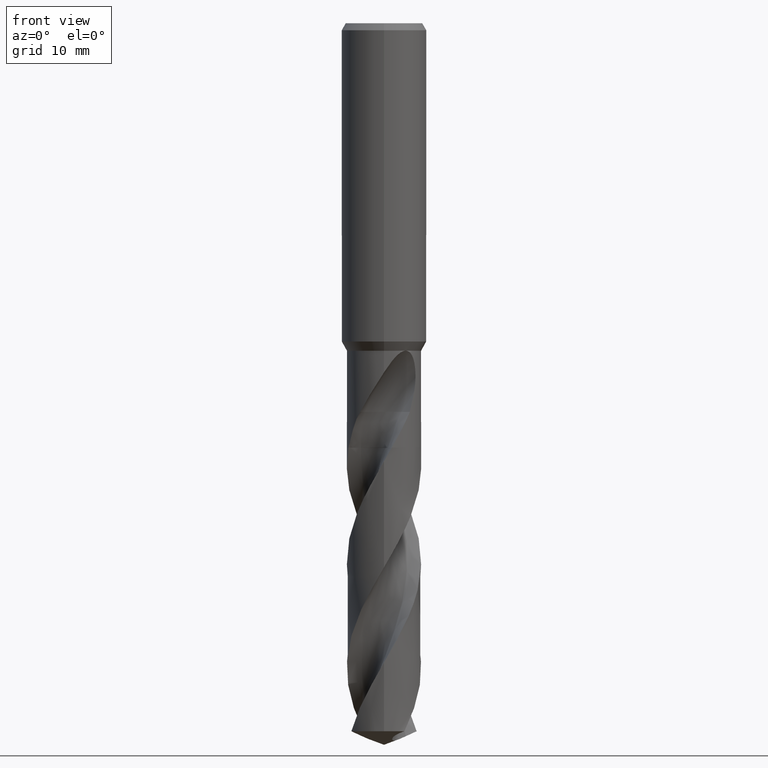
[diagram: clean part render]
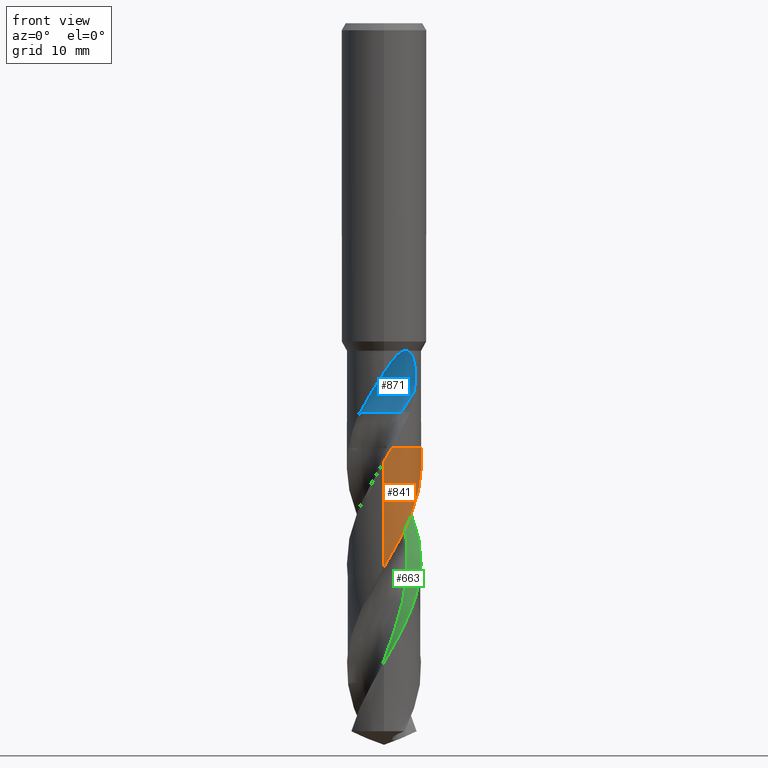
[diagram: same view with three faces highlighted in distinct colors, each labeled with its STEP entity id]
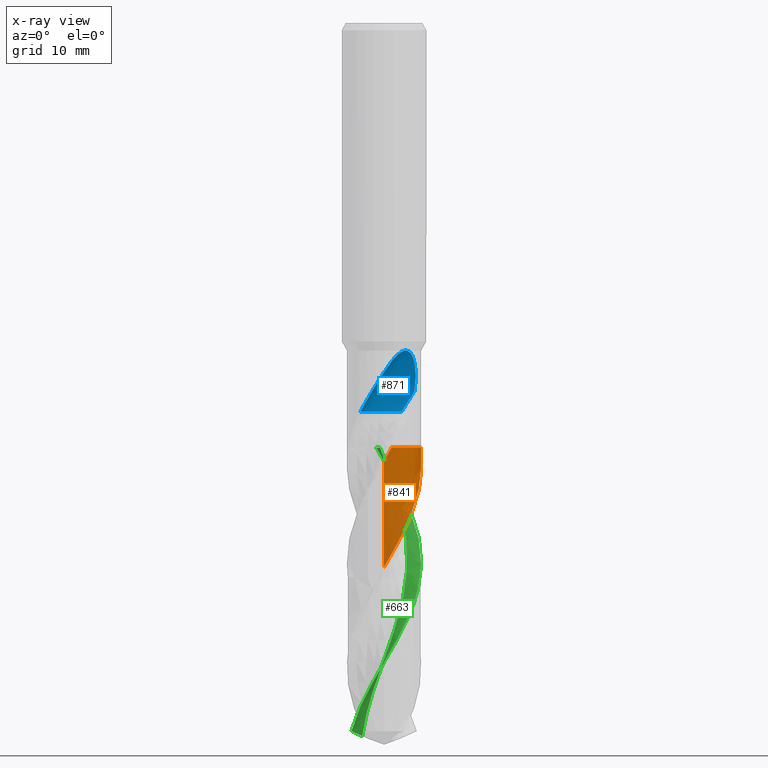
[diagram: x-ray of the same camera — body ghosted, the three highlighted faces saturated]
A machine part, front view with three faces highlighted in distinct colors.
The next image is the same camera in x-ray (body ghosted, the three faces saturated) — at least one of them is partly hidden behind the body in this view.
Their STEP definitions:

[orange] entity #841 — the highlighted conical surface has half-angle 0 deg.
#409=VERTEX_POINT('',#1004);
#425=EDGE_CURVE('',#707,#615,#1021,.T.);
#445=EDGE_CURVE('',#693,#489,#1042,.T.);
#455=EDGE_CURVE('',#639,#409,#1053,.T.);
#489=VERTEX_POINT('',#1093);
#563=EDGE_CURVE('',#489,#707,#1172,.T.);
#567=EDGE_CURVE('',#615,#639,#1176,.T.);
#615=VERTEX_POINT('',#1228);
#639=VERTEX_POINT('',#1253);
#693=VERTEX_POINT('',#1312);
#707=VERTEX_POINT('',#1327);
#815=EDGE_CURVE('',#693,#409,#1446,.T.);
#841=ADVANCED_FACE('',(#1472),#1473,.T.);
#1004=CARTESIAN_POINT('',(-1.29242222200882E-012,-5.24990479078904,-61.9205869078803));
#1021=CIRCLE('',#2390,5.2499);
#1042=B_SPLINE_CURVE_WITH_KNOTS('',3,(#3077,#3078,#3079,#3080,#3081,#3082,#3083,#3084,#3085,#3086,#3087,#3088,#3089,#3090,#3091,#3092,#3093,#3094,#3095,#3096,#3097,#3098,#3099,#3100,#3101,#3102,#3103,#3104,#3105,#3106,#3107,#3108,#3109,#3110,#3111,#3112,#3113,#3114,#3115,#3116,#3117,#3118,#3119,#3120,#3121,#3122,#3123,#3124,#3125,#3126,#3127,#3128,#3129,#3130,#3131,#3132,#3133,#3134,#3135,#3136),.UNSPECIFIED.,.F.,.F.,(4,2,2,2,2,2,2,2,2,2,2,2,2,2,2,2,2,2,2,2,2,2,2,2,2,2,2,2,2,4),(0.0,1.69604232633768,3.95654357850211,5.19424049121899,7.9902199599627,8.06944459956528,10.6110201519859,12.7712613762915,14.6149137898726,14.9937175403709,17.5299463312583,18.9288472685319,20.35117627029,22.6441457482709,23.8341706022322,26.4052815924515,28.1162914181753,28.5780080398245,31.2146760874843,32.3337493303732,33.843140532863,36.6628807183644,38.2955388338668,38.7920476707143,40.5134691139163,41.2327314637739,42.4894622868259,44.3822345116445,44.8542706479082,46.2662731762739),.UNSPECIFIED.);
#1053=B_SPLINE_CURVE_WITH_KNOTS('',3,(#3149,#3150,#3151,#3152,#3153,#3154,#3155,#3156,#3157,#3158,#3159,#3160,#3161,#3162,#3163,#3164,#3165,#3166,#3167,#3168,#3169,#3170,#3171,#3172,#3173,#3174,#3175,#3176,#3177,#3178,#3179,#3180,#3181,#3182,#3183,#3184,#3185,#3186,#3187,#3188,#3189,#3190,#3191,#3192,#3193,#3194,#3195,#3196,#3197,#3198,#3199,#3200,#3201,#3202,#3203,#3204,#3205,#3206,#3207,#3208,#3209,#3210),.UNSPECIFIED.,.F.,.F.,(4,2,2,2,2,2,2,2,2,2,2,2,2,2,2,2,2,2,2,2,2,2,2,2,2,2,2,2,2,2,4),(0.0,1.43060314433986,2.92107776645417,3.93674837129216,4.94065953597037,6.9567805345799,8.97144594495465,10.9987850327712,11.4971904510435,13.5058843635595,15.5315992743186,17.5543433164602,18.5555934004618,20.5702694343211,22.5859867195525,24.6132271536856,25.1111540989228,27.11923642168,28.1339156963816,28.1998878179063,29.9749144308263,30.9912413764675,31.9428990632485,33.7281284630789,34.5162879273958,35.2510175751263,38.0053057504806,39.0431652988399,40.8664623185967,42.2362277973614,46.3577027500781),.UNSPECIFIED.);
#1093=CARTESIAN_POINT('',(5.02190616105026,1.53032960307543,-60.005));
#1172=B_SPLINE_CURVE_WITH_KNOTS('',3,(#6018,#6019,#6020,#6021),.UNSPECIFIED.,.F.,.F.,(4,4),(0.0,0.0130570896058492),.UNSPECIFIED.);
#1176=B_SPLINE_CURVE_WITH_KNOTS('',3,(#6026,#6027,#6028,#6029),.UNSPECIFIED.,.F.,.F.,(4,4),(0.0,0.0106247722658359),.UNSPECIFIED.);
#1228=CARTESIAN_POINT('',(1.10449296799479,-5.13240151329278,-60.0));
#1253=CARTESIAN_POINT('',(1.10165699910935,-5.13301100693042,-60.005));
#1312=CARTESIAN_POINT('',(3.21470154828919E-016,-5.24994219249676,-76.9146159629963));
#1327=CARTESIAN_POINT('',(5.02106099968186,1.53310027313083,-60.0));
#1446=LINE('',#8343,#8344);
#1472=FACE_OUTER_BOUND('',#8415,.T.);
#1473=CONICAL_SURFACE('',#8416,5.24995,2.49444012554929E-006);
#2390=AXIS2_PLACEMENT_3D('',#9245,#9246,#9247);
#3077=CARTESIAN_POINT('',(-2.8901051615319,4.38289768934741,-100.089156270102));
#3078=CARTESIAN_POINT('',(-3.12603112507274,4.2273254388367,-99.5995095148783));
#3079=CARTESIAN_POINT('',(-3.34960088165933,4.05255108882982,-99.1103201914125));
#3080=CARTESIAN_POINT('',(-3.83633144067698,3.60389280659804,-97.969155824684));
#3081=CARTESIAN_POINT('',(-4.08576132906963,3.31839936753522,-97.3228987500801));
#3082=CARTESIAN_POINT('',(-4.4208920606572,2.83917636866332,-96.3139254670834));
#3083=CARTESIAN_POINT('',(-4.52914028809523,2.66307102619708,-95.9556324763328));
#3084=CARTESIAN_POINT('',(-4.84727031929991,2.06979947668451,-94.7925276905195));
#3085=CARTESIAN_POINT('',(-5.01179413960501,1.63131405211992,-93.9964226305323));
#3086=CARTESIAN_POINT('',(-5.11920728001843,1.16456416443467,-93.1671939099345));
#3087=CARTESIAN_POINT('',(-5.1221242441394,1.15166716512589,-93.1443028472052));
#3088=CARTESIAN_POINT('',(-5.21729247490321,0.723337449507694,-92.3849184862638));
#3089=CARTESIAN_POINT('',(-5.25884605395999,0.297880134397622,-91.6564488479887));
#3090=CARTESIAN_POINT('',(-5.23952886899669,-0.490920138394774,-90.2959245085539));
#3091=CARTESIAN_POINT('',(-5.19315433300631,-0.851502767995357,-89.6688131036474));
#3092=CARTESIAN_POINT('',(-5.03881637957859,-1.50613400847199,-88.5103767454134));
#3093=CARTESIAN_POINT('',(-4.9413306963596,-1.80019844387579,-87.9798294172521));
#3094=CARTESIAN_POINT('',(-4.79365714395525,-2.14173748886121,-87.33613067871));
#3095=CARTESIAN_POINT('',(-4.76746627325916,-2.19942106530551,-87.2263614767854));
#3096=CARTESIAN_POINT('',(-4.55761531090769,-2.64020782203027,-86.3818418200341));
#3097=CARTESIAN_POINT('',(-4.32906504632685,-3.00038810224256,-85.655002832788));
#3098=CARTESIAN_POINT('',(-3.91043709931445,-3.51078939209973,-84.5161751324585));
#3099=CARTESIAN_POINT('',(-3.74977275993258,-3.68189380659992,-84.1099709981162));
#3100=CARTESIAN_POINT('',(-3.40348536111457,-4.00440548845531,-83.2934987357573));
#3101=CARTESIAN_POINT('',(-3.21791877679513,-4.15501050287858,-82.8833259914254));
#3102=CARTESIAN_POINT('',(-2.70772435735555,-4.51426145102256,-81.8086845148264));
#3103=CARTESIAN_POINT('',(-2.36965612240539,-4.70051773765695,-81.1432901826052));
#3104=CARTESIAN_POINT('',(-1.8297660175696,-4.92481809771572,-80.1356583558018));
#3105=CARTESIAN_POINT('',(-1.64104749051285,-4.99087792674438,-79.7922242084909));
#3106=CARTESIAN_POINT('',(-1.03401339341714,-5.16518667139937,-78.7043237311908));
#3107=CARTESIAN_POINT('',(-0.606067867706179,-5.23269115610077,-77.9587252011979));
#3108=CARTESIAN_POINT('',(0.112693439674698,-5.25659213077119,-76.7202797923568));
#3109=CARTESIAN_POINT('',(0.399749176052545,-5.24253153279672,-76.2277028717759));
#3110=CARTESIAN_POINT('',(0.760415984674996,-5.19515175182692,-75.5986910976799));
#3111=CARTESIAN_POINT('',(0.836725040831433,-5.18340781157335,-75.4649118378971));
#3112=CARTESIAN_POINT('',(1.34733691629393,-5.09325138861594,-74.568079655969));
#3113=CARTESIAN_POINT('',(1.77059354238548,-4.96204671316346,-73.8137792183439));
#3114=CARTESIAN_POINT('',(2.34335102548353,-4.70166287897628,-72.7276439004102));
#3115=CARTESIAN_POINT('',(2.5095500928279,-4.61509042125619,-72.4030688698153));
#3116=CARTESIAN_POINT('',(2.88853264548823,-4.39113162720045,-71.6429474581602));
#3117=CARTESIAN_POINT('',(3.09679008853746,-4.24685630534213,-71.208190048897));
#3118=CARTESIAN_POINT('',(3.66245483897656,-3.79104555386309,-69.957240341705));
#3119=CARTESIAN_POINT('',(3.98897708809037,-3.44581210802026,-69.1409468496764));
#3120=CARTESIAN_POINT('',(4.42464229444953,-2.83888169474369,-67.8544219256852));
#3121=CARTESIAN_POINT('',(4.56647417942168,-2.60451979017197,-67.3846009404032));
#3122=CARTESIAN_POINT('',(4.72659746844339,-2.28643823579801,-66.7687196411048));
#3123=CARTESIAN_POINT('',(4.76212581058806,-2.21148750531356,-66.624962681427));
#3124=CARTESIAN_POINT('',(4.91302227827379,-1.87262066043252,-65.9833731322141));
#3125=CARTESIAN_POINT('',(5.00850011757267,-1.59999713946767,-65.4880124172875));
#3126=CARTESIAN_POINT('',(5.11152154876554,-1.20353446778928,-64.7829690787855));
#3127=CARTESIAN_POINT('',(5.13782386028333,-1.08575859606639,-64.5753424893121));
#3128=CARTESIAN_POINT('',(5.19884767790033,-0.760206614566056,-64.0042952064219));
#3129=CARTESIAN_POINT('',(5.22511627940783,-0.551286305545956,-63.6400676220906));
#3130=CARTESIAN_POINT('',(5.25938788370471,-0.0254551505790213,-62.7300485734613));
#3131=CARTESIAN_POINT('',(5.25135904879003,0.291849449268539,-62.1863370497658));
#3132=CARTESIAN_POINT('',(5.20560227868835,0.685157787644466,-61.503697917373));
#3133=CARTESIAN_POINT('',(5.19470646769679,0.763368699510361,-61.3674674420904));
#3134=CARTESIAN_POINT('',(5.1442606942825,1.07411375179131,-60.8232343161817));
#3135=CARTESIAN_POINT('',(5.09080591005779,1.30425388010108,-60.4129558671829));
#3136=CARTESIAN_POINT('',(5.02186622742537,1.53046062628461,-60.0047635599666));
#3149=CARTESIAN_POINT('',(1.10257892316848,-5.13281305100531,-60.0033746492053));
#3150=CARTESIAN_POINT('',(0.868618422295841,-5.18307112902309,-60.4158542572162));
#3151=CARTESIAN_POINT('',(0.631669564091157,-5.21723630956715,-60.8281292312265));
#3152=CARTESIAN_POINT('',(0.145173964562918,-5.25379730972545,-61.6706969554782));
#3153=CARTESIAN_POINT('',(-0.104223573404801,-5.25478514275898,-62.0998785881285));
#3154=CARTESIAN_POINT('',(-0.522371130533462,-5.2266146365263,-62.8224039984766));
#3155=CARTESIAN_POINT('',(-0.69115950581733,-5.2069821944883,-63.1150450037658));
#3156=CARTESIAN_POINT('',(-1.02425507523216,-5.15175873132556,-63.6973430929842));
#3157=CARTESIAN_POINT('',(-1.18835466098438,-5.11639464900745,-63.986647587419));
#3158=CARTESIAN_POINT('',(-1.67589447716427,-4.98662142085647,-64.8576359479775));
#3159=CARTESIAN_POINT('',(-1.99242859625746,-4.86882570970779,-65.437997611086));
#3160=CARTESIAN_POINT('',(-2.59855890272966,-4.57412216005371,-66.6001796969169));
#3161=CARTESIAN_POINT('',(-2.88653336182741,-4.39805474892258,-67.179596208651));
#3162=CARTESIAN_POINT('',(-3.42630053870544,-3.99210293136061,-68.3453153967418));
#3163=CARTESIAN_POINT('',(-3.67678724836819,-3.7626907680384,-68.9284167955091));
#3164=CARTESIAN_POINT('',(-3.9592101877276,-3.44866689350374,-69.6566448199159));
#3165=CARTESIAN_POINT('',(-4.01344143032233,-3.38540014665178,-69.8003049564697));
#3166=CARTESIAN_POINT('',(-4.27850965680347,-3.0608494214261,-70.5233243422417));
#3167=CARTESIAN_POINT('',(-4.46549720879389,-2.78098476686657,-71.1018798949298));
#3168=CARTESIAN_POINT('',(-4.78481494655265,-2.18678708755288,-72.2653141725307));
#3169=CARTESIAN_POINT('',(-4.9158509361986,-1.87370818283243,-72.8476613055794));
#3170=CARTESIAN_POINT('',(-5.11562782586054,-1.22736280719264,-74.0154079339251));
#3171=CARTESIAN_POINT('',(-5.18406332544019,-0.895408662258623,-74.5974694829541));
#3172=CARTESIAN_POINT('',(-5.23791939655127,-0.392549373537024,-75.4694759726506));
#3173=CARTESIAN_POINT('',(-5.24776907098667,-0.225356049932076,-75.7579483970451));
#3174=CARTESIAN_POINT('',(-5.25334240368956,0.278669597902259,-76.6278781219883));
#3175=CARTESIAN_POINT('',(-5.2246650969247,0.615059675940542,-77.2079905187987));
#3176=CARTESIAN_POINT('',(-5.10315097364544,1.27805388735894,-78.3703410308356));
#3177=CARTESIAN_POINT('',(-5.01060100149166,1.60290789464235,-78.9502549535432));
#3178=CARTESIAN_POINT('',(-4.76393677653243,2.23196646954475,-80.1165084895025));
#3179=CARTESIAN_POINT('',(-4.60996273635702,2.53479845295803,-80.6996819318756));
#3180=CARTESIAN_POINT('',(-4.38303823017189,2.89100724534232,-81.4278960626842));
#3181=CARTESIAN_POINT('',(-4.33664045538966,2.96015099756517,-81.571449493401));
#3182=CARTESIAN_POINT('',(-4.09499230681046,3.30238889595641,-82.2943112101351));
#3183=CARTESIAN_POINT('',(-3.87545558859398,3.55748103045284,-82.8728289467225));
#3184=CARTESIAN_POINT('',(-3.5105316123901,3.90730532375505,-83.7447231027236));
#3185=CARTESIAN_POINT('',(-3.38240059485701,4.01873772271445,-84.0371375544665));
#3186=CARTESIAN_POINT('',(-3.24041497935274,4.13060773656662,-84.3488192512323));
#3187=CARTESIAN_POINT('',(-3.23172526474826,4.13741003905927,-84.3678473457493));
#3188=CARTESIAN_POINT('',(-2.98863461364664,4.32646809731323,-84.8988951581913));
#3189=CARTESIAN_POINT('',(-2.73926008445949,4.48850404591266,-85.4107244307974));
#3190=CARTESIAN_POINT('',(-2.32774541713381,4.70878114992716,-86.2160951874656));
#3191=CARTESIAN_POINT('',(-2.17407102882042,4.78168069868387,-86.509100068545));
#3192=CARTESIAN_POINT('',(-1.87009802072658,4.9081810527394,-87.0768113498752));
#3193=CARTESIAN_POINT('',(-1.72044192553573,4.96261742885777,-87.3510358849452));
#3194=CARTESIAN_POINT('',(-1.2836722877532,5.09936226175732,-88.1407352322101));
#3195=CARTESIAN_POINT('',(-0.991634712950677,5.16411019633613,-88.65537603278));
#3196=CARTESIAN_POINT('',(-0.564975291519267,5.22114966718802,-89.3978798197409));
#3197=CARTESIAN_POINT('',(-0.433668810746158,5.23369366529112,-89.6251697320394));
#3198=CARTESIAN_POINT('',(-0.179272878645043,5.24835332724454,-90.0645223067234));
#3199=CARTESIAN_POINT('',(-0.0563606413559603,5.25111113102111,-90.2763221210686));
#3200=CARTESIAN_POINT('',(0.527155565121568,5.24371978123804,-91.2831272028538));
#3201=CARTESIAN_POINT('',(0.985194459438266,5.17727047501827,-92.0754638958845));
#3202=CARTESIAN_POINT('',(1.59584667609295,5.0045736714318,-93.1696855400043));
#3203=CARTESIAN_POINT('',(1.76047095603045,4.94906025996376,-93.4689365056154));
#3204=CARTESIAN_POINT('',(2.20576546527623,4.77388033776551,-94.2947224571698));
#3205=CARTESIAN_POINT('',(2.47936080330997,4.63769725229323,-94.8201387613929));
#3206=CARTESIAN_POINT('',(2.93519425110469,4.35884933020307,-95.7415466813912));
#3207=CARTESIAN_POINT('',(3.12260967904288,4.2266037209241,-96.1359689289631));
#3208=CARTESIAN_POINT('',(3.83673331517517,3.64924412690702,-97.721086527838));
#3209=CARTESIAN_POINT('',(4.28251700646899,3.11425495389681,-98.8997198458858));
#3210=CARTESIAN_POINT('',(4.6121454575328,2.50810970225777,-100.089156270102));
#6018=CARTESIAN_POINT('',(5.02296851035413,1.52683910412996,-60.0112980855137));
#6019=CARTESIAN_POINT('',(5.02233399596422,1.52892648614188,-60.0075320141831));
#6020=CARTESIAN_POINT('',(5.02169815904595,1.531013542881,-60.0037659858952));
#6021=CARTESIAN_POINT('',(5.02106099968183,1.53310027313089,-60.0));
#6026=CARTESIAN_POINT('',(1.10449296799482,-5.13240151329279,-60.0));
#6027=CARTESIAN_POINT('',(1.10275552967815,-5.13277541788988,-60.0030633916703));
#6028=CARTESIAN_POINT('',(1.10101790829434,-5.13314843877813,-60.0061267869659));
#6029=CARTESIAN_POINT('',(1.09928010455409,-5.13352057582638,-60.0091901865111));
#8343=CARTESIAN_POINT('',(6.42941265769646E-016,-5.24995,-80.0445781350512));
#8344=VECTOR('',#9651,1.0);
#8415=EDGE_LOOP('',(#9662,#9663,#9664,#9665,#9666,#9667));
#8416=AXIS2_PLACEMENT_3D('',#9668,#9669,#9670);
#9245=CARTESIAN_POINT('',(0.0,0.0,-60.0));
#9246=DIRECTION('',(0.0,0.0,-1.0));
#9247=DIRECTION('',(0.0,1.0,0.0));
#9651=DIRECTION('',(-3.05470722697398E-022,2.49444012554671E-006,0.999999999996889));
#9662=ORIENTED_EDGE('',*,*,#815,.F.);
#9663=ORIENTED_EDGE('',*,*,#445,.T.);
#9664=ORIENTED_EDGE('',*,*,#563,.T.);
#9665=ORIENTED_EDGE('',*,*,#425,.T.);
#9666=ORIENTED_EDGE('',*,*,#567,.T.);
#9667=ORIENTED_EDGE('',*,*,#455,.T.);
#9668=CARTESIAN_POINT('',(0.0,0.0,-80.0445781350512));
#9669=DIRECTION('',(0.0,-0.0,-1.0));
#9670=DIRECTION('',(0.0,1.0,0.0));

[blue] entity #871 — the highlighted face is a SurfaceOfRevolution surface.
#331=VERTEX_POINT('',#918);
#345=EDGE_CURVE('',#725,#331,#934,.T.);
#381=VERTEX_POINT('',#972);
#485=VERTEX_POINT('',#1089);
#495=EDGE_CURVE('',#381,#549,#1099,.T.);
#521=EDGE_CURVE('',#755,#381,#1129,.T.);
#549=VERTEX_POINT('',#1158);
#621=EDGE_CURVE('',#549,#485,#1235,.T.);
#695=EDGE_CURVE('',#331,#485,#1314,.T.);
#725=VERTEX_POINT('',#1347);
#755=VERTEX_POINT('',#1380);
#763=EDGE_CURVE('',#781,#755,#1388,.T.);
#781=VERTEX_POINT('',#1409);
#819=EDGE_CURVE('',#781,#725,#1450,.T.);
#871=ADVANCED_FACE('',(#1509),#1510,.F.);
#918=CARTESIAN_POINT('',(2.47487373408221,-2.6001262659178,-54.943));
#934=CIRCLE('',#1596,3.5);
#972=CARTESIAN_POINT('',(2.95985299562675,-4.33610081112966,-46.2990381056767));
#1089=CARTESIAN_POINT('',(4.27162135735454,-3.052171518672,-52.0682038027643));
#1099=B_SPLINE_CURVE_WITH_KNOTS('',3,(#4402,#4403,#4404,#4405,#4406,#4407,#4408,#4409),.UNSPECIFIED.,.F.,.F.,(4,2,2,4),(0.0,0.130553651182895,0.19933235253528,0.268049445421066),.UNSPECIFIED.);
#1129=B_SPLINE_CURVE_WITH_KNOTS('',3,(#5161,#5162,#5163,#5164,#5165,#5166,#5167,#5168,#5169,#5170,#5171,#5172,#5173,#5174,#5175,#5176,#5177,#5178),.UNSPECIFIED.,.F.,.F.,(4,2,2,2,2,2,2,2,4),(0.0,2.57220396734421,3.97668789531417,5.2487967961871,6.72668103106482,8.50195842855667,9.81899737769808,10.3946869029934,10.8825103231951),.UNSPECIFIED.);
#1158=CARTESIAN_POINT('',(3.16898123829277,-4.18569682506371,-46.2990381056767));
#1235=B_SPLINE_CURVE_WITH_KNOTS('',3,(#6468,#6469,#6470,#6471,#6472,#6473,#6474,#6475,#6476,#6477,#6478,#6479,#6480,#6481),.UNSPECIFIED.,.F.,.F.,(4,2,2,2,2,2,4),(0.0,0.484126072808814,1.05414913967226,1.91472869046431,3.26356083928934,4.49664085242454,5.80896964477555),.UNSPECIFIED.);
#1314=CIRCLE('',#7021,22.8126144757953);
#1347=CARTESIAN_POINT('',(0.563884144710426,-1.62070661058819,-54.943));
#1380=CARTESIAN_POINT('',(1.55618427310416E-012,-5.25,-49.3623709465314));
#1388=B_SPLINE_CURVE_WITH_KNOTS('',3,(#7179,#7180,#7181,#7182,#7183,#7184,#7185,#7186,#7187,#7188,#7189,#7190,#7191,#7192,#7193,#7194,#7195,#7196),.UNSPECIFIED.,.F.,.F.,(4,2,2,2,2,2,2,2,4),(0.0,2.57220396734421,3.97668789531417,5.2487967961871,6.72668103106482,8.50195842855667,9.81899737769808,10.3946869029934,10.8825103231951),.UNSPECIFIED.);
#1409=CARTESIAN_POINT('',(-3.34537559219275,-4.04610456453624,-54.943));
#1450=CIRCLE('',#8349,3.5);
#1509=FACE_OUTER_BOUND('',#9107,.T.);
#1510=SURFACE_OF_REVOLUTION('',#9108,#9109);
#1596=AXIS2_PLACEMENT_3D('',#9167,#9168,#9169);
#4402=CARTESIAN_POINT('',(2.95985299562681,-4.33610081112962,-46.2990381056767));
#4403=CARTESIAN_POINT('',(2.99772656451854,-4.3205841056449,-46.2842519352991));
#4404=CARTESIAN_POINT('',(3.03531941898288,-4.3008615035422,-46.2749561234811));
#4405=CARTESIAN_POINT('',(3.08970143443587,-4.26276091778286,-46.2736107379493));
#4406=CARTESIAN_POINT('',(3.10737886061419,-4.24853992587698,-46.2754971721454));
#4407=CARTESIAN_POINT('',(3.14045181769882,-4.21801135885323,-46.2840298981742));
#4408=CARTESIAN_POINT('',(3.15543078047217,-4.20209247906525,-46.290563893593));
#4409=CARTESIAN_POINT('',(3.16898123829277,-4.18569682506371,-46.2990381056767));
#5161=CARTESIAN_POINT('',(-3.34537559219275,-4.04610456453624,-54.943));
#5162=CARTESIAN_POINT('',(-2.99906673386889,-4.33243755062642,-54.2127804279131));
#5163=CARTESIAN_POINT('',(-2.60089010837877,-4.58696766397221,-53.5319800525282));
#5164=CARTESIAN_POINT('',(-1.90658882888954,-4.89894775407032,-52.3946565989927));
#5165=CARTESIAN_POINT('',(-1.65674655494989,-4.98869265757425,-51.9945078916019));
#5166=CARTESIAN_POINT('',(-1.17308350635681,-5.12281949480103,-51.219923866943));
#5167=CARTESIAN_POINT('',(-0.941422265390679,-5.17020618545122,-50.8490989748222));
#5168=CARTESIAN_POINT('',(-0.439973294456233,-5.2385968395185,-50.0498730264765));
#5169=CARTESIAN_POINT('',(-0.165996949645533,-5.25465305516356,-49.6152160187523));
#5170=CARTESIAN_POINT('',(0.442434502733848,-5.24185480793764,-48.6853411036771));
#5171=CARTESIAN_POINT('',(0.803172933379596,-5.20227038148179,-48.1562320779854));
#5172=CARTESIAN_POINT('',(1.45228863481314,-5.05310061367272,-47.3421150852057));
#5173=CARTESIAN_POINT('',(1.76846918394837,-4.95631366522426,-46.9877356922006));
#5174=CARTESIAN_POINT('',(2.24346330529753,-4.74912793848427,-46.6058015976246));
#5175=CARTESIAN_POINT('',(2.39661591741941,-4.67452312805835,-46.5018335753295));
#5176=CARTESIAN_POINT('',(2.68729785682746,-4.51267319615458,-46.3602694667765));
#5177=CARTESIAN_POINT('',(2.82360640681275,-4.4291036935834,-46.3149903365927));
#5178=CARTESIAN_POINT('',(2.95985299562675,-4.33610081112966,-46.2990381056767));
#6468=CARTESIAN_POINT('',(3.16898123829277,-4.18569682506371,-46.2990381056767));
#6469=CARTESIAN_POINT('',(3.29701231621131,-4.08876479658693,-46.3149827280889));
#6470=CARTESIAN_POINT('',(3.41443442192493,-3.99061596754179,-46.3608079363659));
#6471=CARTESIAN_POINT('',(3.64777632228369,-3.7795730042443,-46.5173243923612));
#6472=CARTESIAN_POINT('',(3.75480324998794,-3.67176006308665,-46.6346853773975));
#6473=CARTESIAN_POINT('',(3.98318277155086,-3.42600121772502,-46.9744322543222));
#6474=CARTESIAN_POINT('',(4.08648974524984,-3.29849518145352,-47.2228035862081));
#6475=CARTESIAN_POINT('',(4.29002614055,-3.03312733802163,-47.8837823134907));
#6476=CARTESIAN_POINT('',(4.37496810643487,-2.9033148811344,-48.375587975045));
#6477=CARTESIAN_POINT('',(4.46188468175437,-2.76767136150471,-49.4337595320842));
#6478=CARTESIAN_POINT('',(4.46797816733693,-2.75708308944152,-49.9517171642938));
#6479=CARTESIAN_POINT('',(4.42091527761469,-2.83197594658294,-51.0085512772826));
#6480=CARTESIAN_POINT('',(4.36382886386941,-2.9231238712093,-51.543749439862));
#6481=CARTESIAN_POINT('',(4.27162135735455,-3.05217151867199,-52.0682038027643));
#7021=AXIS2_PLACEMENT_3D('',#9505,#9506,#9507);
#7179=CARTESIAN_POINT('',(-3.34537559219275,-4.04610456453624,-54.943));
#7180=CARTESIAN_POINT('',(-2.99906673386889,-4.33243755062642,-54.2127804279131));
#7181=CARTESIAN_POINT('',(-2.60089010837877,-4.58696766397221,-53.5319800525282));
#7182=CARTESIAN_POINT('',(-1.90658882888954,-4.89894775407032,-52.3946565989927));
#7183=CARTESIAN_POINT('',(-1.65674655494989,-4.98869265757425,-51.9945078916019));
#7184=CARTESIAN_POINT('',(-1.17308350635681,-5.12281949480103,-51.219923866943));
#7185=CARTESIAN_POINT('',(-0.941422265390679,-5.17020618545122,-50.8490989748222));
#7186=CARTESIAN_POINT('',(-0.439973294456233,-5.2385968395185,-50.0498730264765));
#7187=CARTESIAN_POINT('',(-0.165996949645533,-5.25465305516356,-49.6152160187523));
#7188=CARTESIAN_POINT('',(0.442434502733848,-5.24185480793764,-48.6853411036771));
#7189=CARTESIAN_POINT('',(0.803172933379596,-5.20227038148179,-48.1562320779854));
#7190=CARTESIAN_POINT('',(1.45228863481314,-5.05310061367272,-47.3421150852057));
#7191=CARTESIAN_POINT('',(1.76846918394837,-4.95631366522426,-46.9877356922006));
#7192=CARTESIAN_POINT('',(2.24346330529753,-4.74912793848427,-46.6058015976246));
#7193=CARTESIAN_POINT('',(2.39661591741941,-4.67452312805835,-46.5018335753295));
#7194=CARTESIAN_POINT('',(2.68729785682746,-4.51267319615458,-46.3602694667765));
#7195=CARTESIAN_POINT('',(2.82360640681275,-4.4291036935834,-46.3149903365927));
#7196=CARTESIAN_POINT('',(2.95985299562675,-4.33610081112966,-46.2990381056767));
#8349=AXIS2_PLACEMENT_3D('',#9652,#9653,#9654);
#9107=EDGE_LOOP('',(#9731,#9732,#9733,#9734,#9735,#9736,#9737));
#9108=(B_SPLINE_CURVE(3,(#9739,#9740,#9741,#9742,#9743,#9744,#9745,#9746,#9747),.UNSPECIFIED.,.F.,.F.)B_SPLINE_CURVE_WITH_KNOTS((4,1,3,1,4),(-2.85636986122833,-2.5535810689409,-2.25079227665346,-1.94800348436603,-1.6452146920786),.UNSPECIFIED.)RATIONAL_B_SPLINE_CURVE((1.09168105273488,1.03056035091163,0.969439649088372,1.03056035091163,1.09168105273488,1.03056035091163,0.969439649088372,1.03056035091163,1.09168105273488))BOUNDED_CURVE()REPRESENTATION_ITEM('')GEOMETRIC_REPRESENTATION_ITEM()CURVE());
#9109=AXIS1_PLACEMENT('',#9754,#9755);
#9167=CARTESIAN_POINT('',(-1.87083351824082E-005,-5.07498129166482,-54.943));
#9168=DIRECTION('',(-0.0,0.0,-1.0));
#9169=DIRECTION('',(-0.707101435927723,-0.707112126404966,0.0));
#9505=CARTESIAN_POINT('',(1.77968448293552,-25.375,-56.0553028018347));
#9506=DIRECTION('',(0.847998304005088,0.0,-0.52999894000318));
#9507=DIRECTION('',(0.0535598122533606,0.994880693138896,0.085695699605377));
#9652=CARTESIAN_POINT('',(-1.87083351824082E-005,-5.07498129166482,-54.943));
#9653=DIRECTION('',(-0.0,0.0,-1.0));
#9654=DIRECTION('',(-0.707101435927723,-0.707112126404966,0.0));
#9731=ORIENTED_EDGE('',*,*,#621,.F.);
#9732=ORIENTED_EDGE('',*,*,#495,.F.);
#9733=ORIENTED_EDGE('',*,*,#521,.F.);
#9734=ORIENTED_EDGE('',*,*,#763,.F.);
#9735=ORIENTED_EDGE('',*,*,#819,.T.);
#9736=ORIENTED_EDGE('',*,*,#345,.T.);
#9737=ORIENTED_EDGE('',*,*,#695,.T.);
#9739=CARTESIAN_POINT('',(2.47487373408221,-2.6001262659178,-54.943));
#9740=CARTESIAN_POINT('',(1.99011586187573,-2.11536106478687,-54.943));
#9741=CARTESIAN_POINT('',(0.729603598927308,-1.42655595484029,-54.943));
#9742=CARTESIAN_POINT('',(-0.698866228302994,-1.57761090253979,-54.943));
#9743=CARTESIAN_POINT('',(-1.33277455225658,-1.83866210770082,-54.943));
#9744=CARTESIAN_POINT('',(-1.96668287621016,-2.09971331286185,-54.943));
#9745=CARTESIAN_POINT('',(-3.08727207201611,-2.99839206457174,-54.943));
#9746=CARTESIAN_POINT('',(-3.49718185174118,-4.37509741322759,-54.943));
#9747=CARTESIAN_POINT('',(-3.49998935919366,-5.06064800420944,-54.943));
#9754=CARTESIAN_POINT('',(1.77968448293552,-25.375,-56.0553028018347));
#9755=DIRECTION('',(-0.847998304005088,0.0,0.52999894000318));

[green] entity #663 — the highlighted face is a freeform B-spline surface patch.
#377=VERTEX_POINT('',#968);
#389=VERTEX_POINT('',#982);
#437=EDGE_CURVE('',#377,#625,#1034,.T.);
#453=VERTEX_POINT('',#1051);
#483=EDGE_CURVE('',#579,#389,#1087,.T.);
#487=EDGE_CURVE('',#641,#579,#1091,.T.);
#575=EDGE_CURVE('',#453,#625,#1184,.T.);
#579=VERTEX_POINT('',#1188);
#625=VERTEX_POINT('',#1239);
#641=VERTEX_POINT('',#1255);
#663=ADVANCED_FACE('',(#1279),#1280,.F.);
#785=EDGE_CURVE('',#389,#377,#1413,.T.);
#821=EDGE_CURVE('',#453,#641,#1452,.T.);
#968=CARTESIAN_POINT('',(-4.6121454575328,-2.50810970225777,-100.089156270102));
#982=CARTESIAN_POINT('',(1.27559778750897E-014,-5.24997576509353,-90.3735867401727));
#1034=B_SPLINE_CURVE_WITH_KNOTS('',3,(#3045,#3046,#3047,#3048,#3049,#3050,#3051,#3052,#3053,#3054),.UNSPECIFIED.,.F.,.F.,(4,2,2,2,4),(0.0,2.28802503380454,3.4170734124168,3.97942170095395,4.54145936763836),.UNSPECIFIED.);
#1051=CARTESIAN_POINT('',(-0.553951693116097,3.25396113428154,-60.005));
#1087=B_SPLINE_CURVE_WITH_KNOTS('',3,(#4255,#4256,#4257,#4258,#4259,#4260,#4261,#4262,#4263,#4264,#4265,#4266,#4267,#4268,#4269,#4270,#4271,#4272,#4273,#4274,#4275,#4276,#4277,#4278,#4279,#4280,#4281,#4282,#4283,#4284,#4285,#4286,#4287,#4288,#4289,#4290,#4291,#4292,#4293,#4294,#4295,#4296,#4297,#4298,#4299,#4300,#4301,#4302,#4303,#4304,#4305,#4306,#4307,#4308,#4309,#4310,#4311,#4312,#4313,#4314,#4315,#4316),.UNSPECIFIED.,.F.,.F.,(4,2,2,2,2,2,2,2,2,2,2,2,2,2,2,2,2,2,2,2,2,2,2,2,2,2,2,2,2,2,4),(0.0,1.43060314434761,2.92107774517278,3.93674834978185,4.94065951060769,6.95678050686233,8.971445917565,10.9987850055238,11.4971904237662,13.5058843374096,15.5315992494196,17.5543432889387,18.555593373722,20.5702694084734,22.585986698096,24.6132271326786,25.1111540778835,27.1192364024182,28.1339156774589,28.1998877990165,29.9749145222559,30.9912414681359,31.9428991467248,33.7281285361591,34.5162879964724,35.2510176391117,38.0053058009303,39.0431653431453,40.8664623532238,42.2362278247418,46.3577027559565),.UNSPECIFIED.);
#1091=B_SPLINE_CURVE_WITH_KNOTS('',3,(#4321,#4322,#4323,#4324,#4325,#4326,#4327,#4328,#4329,#4330,#4331,#4332,#4333,#4334,#4335,#4336,#4337,#4338,#4339,#4340,#4341,#4342,#4343,#4344,#4345,#4346,#4347,#4348,#4349,#4350,#4351,#4352,#4353,#4354,#4355,#4356,#4357,#4358,#4359,#4360,#4361,#4362,#4363,#4364,#4365,#4366,#4367,#4368,#4369,#4370,#4371,#4372,#4373,#4374,#4375,#4376,#4377,#4378,#4379,#4380,#4381,#4382),.UNSPECIFIED.,.F.,.F.,(4,2,2,2,2,2,2,2,2,2,2,2,2,2,2,2,2,2,2,2,2,2,2,2,2,2,2,2,2,2,4),(0.0,1.43060314434761,2.92107774517278,3.93674834978185,4.94065951060769,6.95678050686233,8.971445917565,10.9987850055238,11.4971904237662,13.5058843374096,15.5315992494196,17.5543432889387,18.555593373722,20.5702694084734,22.585986698096,24.6132271326786,25.1111540778835,27.1192364024182,28.1339156774589,28.1998877990165,29.9749145222559,30.9912414681359,31.9428991467248,33.7281285361591,34.5162879964724,35.2510176391117,38.0053058009303,39.0431653431453,40.8664623532238,42.2362278247418,46.3577027559565),.UNSPECIFIED.);
#1184=B_SPLINE_CURVE_WITH_KNOTS('',3,(#6070,#6071,#6072,#6073,#6074,#6075,#6076,#6077,#6078,#6079,#6080,#6081,#6082,#6083,#6084,#6085,#6086,#6087,#6088,#6089,#6090,#6091,#6092,#6093,#6094,#6095,#6096,#6097,#6098,#6099,#6100,#6101,#6102,#6103,#6104,#6105,#6106,#6107,#6108,#6109,#6110,#6111,#6112,#6113,#6114,#6115,#6116,#6117,#6118,#6119,#6120,#6121,#6122,#6123,#6124,#6125,#6126,#6127),.UNSPECIFIED.,.F.,.F.,(4,1,2,2,2,2,2,2,1,2,1,2,1,2,1,2,1,2,1,2,1,2,1,2,1,2,1,2,1,2,1,2,1,2,2,4),(0.0,0.946443982491389,1.89288796498278,2.83933194747417,3.78577592996556,4.73221991245695,5.67866389494833,7.57155185993111,9.46443982491389,11.3573277898967,13.2502157548794,15.1431037198622,17.035991684845,18.9288796498278,20.8217676148106,22.7146555797933,24.6075435447761,26.5004315097589,28.3933194747417,30.2862074397245,32.1790954047072,34.07198336969,35.9648713346728,37.8577592996556,39.7506472646383,41.6435352296211,43.5364231946039,45.4293111595867,47.3221991245695,49.2150870895522,51.107975054535,53.0008630195178,54.8937509845006,56.7866389494833,58.6795269144661,60.5724148794489),.UNSPECIFIED.);
#1188=CARTESIAN_POINT('',(1.27554686887636E-012,5.24990479078902,-61.9205869078802));
#1239=CARTESIAN_POINT('',(-3.07648059904666,-1.22456822289559,-100.794807758163));
#1255=CARTESIAN_POINT('',(-1.10165699910935,5.13301100693042,-60.005));
#1279=FACE_OUTER_BOUND('',#6673,.T.);
#1280=B_SPLINE_SURFACE_WITH_KNOTS('',3,3,((#6674,#6675,#6676,#6677,#6678,#6679,#6680,#6681,#6682,#6683,#6684,#6685,#6686,#6687,#6688,#6689,#6690,#6691,#6692,#6693,#6694,#6695,#6696,#6697,#6698,#6699,#6700,#6701,#6702,#6703,#6704,#6705,#6706,#6707,#6708,#6709,#6710,#6711,#6712,#6713,#6714,#6715,#6716,#6717,#6718,#6719,#6720,#6721,#6722,#6723,#6724,#6725,#6726,#6727,#6728,#6729,#6730,#6731,#6732),(#6733,#6734,#6735,#6736,#6737,#6738,#6739,#6740,#6741,#6742,#6743,#6744,#6745,#6746,#6747,#6748,#6749,#6750,#6751,#6752,#6753,#6754,#6755,#6756,#6757,#6758,#6759,#6760,#6761,#6762,#6763,#6764,#6765,#6766,#6767,#6768,#6769,#6770,#6771,#6772,#6773,#6774,#6775,#6776,#6777,#6778,#6779,#6780,#6781,#6782,#6783,#6784,#6785,#6786,#6787,#6788,#6789,#6790,#6791),(#6792,#6793,#6794,#6795,#6796,#6797,#6798,#6799,#6800,#6801,#6802,#6803,#6804,#6805,#6806,#6807,#6808,#6809,#6810,#6811,#6812,#6813,#6814,#6815,#6816,#6817,#6818,#6819,#6820,#6821,#6822,#6823,#6824,#6825,#6826,#6827,#6828,#6829,#6830,#6831,#6832,#6833,#6834,#6835,#6836,#6837,#6838,#6839,#6840,#6841,#6842,#6843,#6844,#6845,#6846,#6847,#6848,#6849,#6850),(#6851,#6852,#6853,#6854,#6855,#6856,#6857,#6858,#6859,#6860,#6861,#6862,#6863,#6864,#6865,#6866,#6867,#6868,#6869,#6870,#6871,#6872,#6873,#6874,#6875,#6876,#6877,#6878,#6879,#6880,#6881,#6882,#6883,#6884,#6885,#6886,#6887,#6888,#6889,#6890,#6891,#6892,#6893,#6894,#6895,#6896,#6897,#6898,#6899,#6900,#6901,#6902,#6903,#6904,#6905,#6906,#6907,#6908,#6909)),.UNSPECIFIED.,.F.,.F.,.F.,(4,4),(4,1,2,2,2,2,2,2,2,2,1,2,1,2,1,2,1,2,1,2,1,2,1,2,1,2,1,2,1,2,1,2,1,2,2,4),(-5.3145557616166E-016,7.0),(0.0,0.946443982491389,1.89288796498278,2.83933194747417,3.78577592996556,4.73221991245695,5.67866389494833,7.57155185993111,9.46443982491389,11.3573277898967,13.2502157548794,15.1431037198622,17.035991684845,18.9288796498278,20.8217676148106,22.7146555797933,24.6075435447761,26.5004315097589,28.3933194747417,30.2862074397245,32.1790954047072,34.07198336969,35.9648713346728,37.8577592996556,39.7506472646383,41.6435352296211,43.5364231946039,45.4293111595867,47.3221991245695,49.2150870895522,51.107975054535,53.0008630195178,54.8937509845006,56.7866389494833,58.6795269144661,60.5724148794489),.UNSPECIFIED.);
#1413=B_SPLINE_CURVE_WITH_KNOTS('',3,(#7555,#7556,#7557,#7558,#7559,#7560,#7561,#7562,#7563,#7564,#7565,#7566,#7567,#7568,#7569,#7570,#7571,#7572,#7573,#7574,#7575,#7576,#7577,#7578,#7579,#7580,#7581,#7582,#7583,#7584,#7585,#7586,#7587,#7588,#7589,#7590,#7591,#7592,#7593,#7594,#7595,#7596,#7597,#7598,#7599,#7600,#7601,#7602,#7603,#7604,#7605,#7606,#7607,#7608,#7609,#7610,#7611,#7612,#7613,#7614,#7615,#7616),.UNSPECIFIED.,.F.,.F.,(4,2,2,2,2,2,2,2,2,2,2,2,2,2,2,2,2,2,2,2,2,2,2,2,2,2,2,2,2,2,4),(0.0,1.43060314434761,2.92107774517278,3.93674834978185,4.94065951060769,6.95678050686233,8.971445917565,10.9987850055238,11.4971904237662,13.5058843374096,15.5315992494196,17.5543432889387,18.555593373722,20.5702694084734,22.585986698096,24.6132271326786,25.1111540778835,27.1192364024182,28.1339156774589,28.1998877990165,29.9749145222559,30.9912414681359,31.9428991467248,33.7281285361591,34.5162879964724,35.2510176391117,38.0053058009303,39.0431653431453,40.8664623532238,42.2362278247418,46.3577027559565),.UNSPECIFIED.);
#1452=B_SPLINE_CURVE_WITH_KNOTS('',3,(#8352,#8353,#8354,#8355,#8356,#8357),.UNSPECIFIED.,.F.,.F.,(4,2,4),(-6.99975546667268,-3.49987804555919,-0.0),.UNSPECIFIED.);
#3045=CARTESIAN_POINT('',(-6.10052521153882,-4.23185445678124,-99.2976588816032));
#3046=CARTESIAN_POINT('',(-5.67659568160664,-3.64830331303675,-99.5454995342389));
#3047=CARTESIAN_POINT('',(-5.20784986785813,-3.09937696076715,-99.7953857754676));
#3048=CARTESIAN_POINT('',(-4.44538905919668,-2.34161686796396,-100.171610210657));
#3049=CARTESIAN_POINT('',(-4.18353383354909,-2.10160667527877,-100.296294960025));
#3050=CARTESIAN_POINT('',(-3.77708299799692,-1.75881751028251,-100.483601139733));
#3051=CARTESIAN_POINT('',(-3.63998470211796,-1.64796321929751,-100.545783351071));
#3052=CARTESIAN_POINT('',(-3.36140138235789,-1.43194051456162,-100.670255599468));
#3053=CARTESIAN_POINT('',(-3.2199716702447,-1.32680997940616,-100.732521832791));
#3054=CARTESIAN_POINT('',(-3.07648059900007,-1.22456822298232,-100.794807758168));
#4255=CARTESIAN_POINT('',(-1.10257892316849,5.13281305100534,-60.0033746492053));
#4256=CARTESIAN_POINT('',(-0.86861842229458,5.18307112902339,-60.4158542572184));
#4257=CARTESIAN_POINT('',(-0.631669564088077,5.21723630956749,-60.8281292312319));
#4258=CARTESIAN_POINT('',(-0.145173968107774,5.25379730945892,-61.6706969493388));
#4259=CARTESIAN_POINT('',(0.104223566283353,5.25478514273103,-62.0998785758849));
#4260=CARTESIAN_POINT('',(0.522371119869458,5.22661463759067,-62.8224039800081));
#4261=CARTESIAN_POINT('',(0.691159495153415,5.20698219590237,-63.1150449852272));
#4262=CARTESIAN_POINT('',(1.02425506400076,5.15175873353739,-63.6973430732481));
#4263=CARTESIAN_POINT('',(1.1883546491983,5.11639465172366,-63.9866475665537));
#4264=CARTESIAN_POINT('',(1.67589446468189,4.98662142502446,-64.8576359252951));
#4265=CARTESIAN_POINT('',(1.9924285836919,4.86882571482156,-65.4379975877334));
#4266=CARTESIAN_POINT('',(2.59855889061615,4.5741221669383,-66.6001796729509));
#4267=CARTESIAN_POINT('',(2.88653335021403,4.39805475654787,-67.1795961847163));
#4268=CARTESIAN_POINT('',(3.42630052820428,3.99210294037433,-68.3453153729092));
#4269=CARTESIAN_POINT('',(3.67678723848025,3.76269077770178,-68.9284167717218));
#4270=CARTESIAN_POINT('',(3.95921017866874,3.44866690390339,-69.6566447961375));
#4271=CARTESIAN_POINT('',(4.01344142142556,3.38540015719886,-69.8003049326701));
#4272=CARTESIAN_POINT('',(4.27850964888112,3.0608494325214,-70.5233243187462));
#4273=CARTESIAN_POINT('',(4.46549720169985,2.78098477827997,-71.1018798717874));
#4274=CARTESIAN_POINT('',(4.7848149411409,2.18678709942591,-72.2653141500851));
#4275=CARTESIAN_POINT('',(4.91585093163865,1.87370819483343,-72.8476612834643));
#4276=CARTESIAN_POINT('',(5.11562782278436,1.22736281989307,-74.0154079114116));
#4277=CARTESIAN_POINT('',(5.18406332311266,0.895408675566907,-74.5974694597076));
#4278=CARTESIAN_POINT('',(5.237919395524,0.392549387298477,-75.4694759488703));
#4279=CARTESIAN_POINT('',(5.24776907040441,0.225356063588984,-75.7579483734713));
#4280=CARTESIAN_POINT('',(5.25334240440934,-0.27866958451985,-76.6278780988956));
#4281=CARTESIAN_POINT('',(5.22466509848285,-0.61505966278611,-77.2079904959933));
#4282=CARTESIAN_POINT('',(5.10315097669487,-1.27805387537637,-78.370341009571));
#4283=CARTESIAN_POINT('',(5.0106010050791,-1.60290788358404,-78.9502549335093));
#4284=CARTESIAN_POINT('',(4.76393678112007,-2.23196645976542,-80.1165084709016));
#4285=CARTESIAN_POINT('',(4.60996274152531,-2.53479844357002,-80.6996819134379));
#4286=CARTESIAN_POINT('',(4.38303823601525,-2.89100723648309,-81.4278960443875));
#4287=CARTESIAN_POINT('',(4.33664046137393,-2.96015098879807,-81.5714494750928));
#4288=CARTESIAN_POINT('',(4.09499231330549,-3.30238888793445,-82.2943111923477));
#4289=CARTESIAN_POINT('',(3.87545559537331,-3.5574810230967,-82.8728289294939));
#4290=CARTESIAN_POINT('',(3.51053161954555,-3.90730531732889,-83.7447230861485));
#4291=CARTESIAN_POINT('',(3.38240060216652,-4.01873771656513,-84.0371375380065));
#4292=CARTESIAN_POINT('',(3.24041498680706,-4.13060773071877,-84.3488192348958));
#4293=CARTESIAN_POINT('',(3.23172527221314,-4.13741003322843,-84.3678473294159));
#4294=CARTESIAN_POINT('',(2.98863460695992,-4.3264681031922,-84.8988951734952));
#4295=CARTESIAN_POINT('',(2.73926006173557,-4.48850406099558,-85.4107244776818));
#4296=CARTESIAN_POINT('',(2.32774537630839,-4.70878117010891,-86.2160952659838));
#4297=CARTESIAN_POINT('',(2.17407098736762,-4.78168071753101,-86.5091001470307));
#4298=CARTESIAN_POINT('',(1.87009797949124,-4.90818106840503,-87.0768114258887));
#4299=CARTESIAN_POINT('',(1.72044188519017,-4.96261744279917,-87.3510359585387));
#4300=CARTESIAN_POINT('',(1.28367224946033,-5.09936227128883,-88.1407353002317));
#4301=CARTESIAN_POINT('',(0.991634675990557,-5.16411020332825,-88.6553760975975));
#4302=CARTESIAN_POINT('',(0.564975256675707,-5.22114967094075,-89.397879880159));
#4303=CARTESIAN_POINT('',(0.433668776524483,-5.23369366810901,-89.6251697912288));
#4304=CARTESIAN_POINT('',(0.17927284592594,-5.24835332834146,-90.0645223631495));
#4305=CARTESIAN_POINT('',(0.056360609515406,-5.25111113134199,-90.2763221759697));
#4306=CARTESIAN_POINT('',(-0.527155593587286,-5.24371977816258,-91.2831272521071));
#4307=CARTESIAN_POINT('',(-0.985194485127229,-5.17727046991577,-92.075463940908));
#4308=CARTESIAN_POINT('',(-1.59584669764657,-5.0045736645214,-93.1696855790059));
#4309=CARTESIAN_POINT('',(-1.76047097632332,-4.94906025270725,-93.4689365427837));
#4310=CARTESIAN_POINT('',(-2.20576548227638,-4.77388032980085,-94.2947224895119));
#4311=CARTESIAN_POINT('',(-2.47936081829906,-4.63769724416718,-94.8201387907609));
#4312=CARTESIAN_POINT('',(-2.93519426272211,-4.35884932231261,-95.7415467055734));
#4313=CARTESIAN_POINT('',(-3.12260968926676,-4.22660371330092,-96.135968950946));
#4314=CARTESIAN_POINT('',(-3.83673332015922,-3.64924412094377,-97.7210865410391));
#4315=CARTESIAN_POINT('',(-4.28251700831304,-3.11425495050583,-98.8997198525398));
#4316=CARTESIAN_POINT('',(-4.6121454575328,-2.50810970225779,-100.089156270102));
#4321=CARTESIAN_POINT('',(-1.10257892316849,5.13281305100534,-60.0033746492053));
#4322=CARTESIAN_POINT('',(-0.86861842229458,5.18307112902339,-60.4158542572184));
#4323=CARTESIAN_POINT('',(-0.631669564088077,5.21723630956749,-60.8281292312319));
#4324=CARTESIAN_POINT('',(-0.145173968107774,5.25379730945892,-61.6706969493388));
#4325=CARTESIAN_POINT('',(0.104223566283353,5.25478514273103,-62.0998785758849));
#4326=CARTESIAN_POINT('',(0.522371119869458,5.22661463759067,-62.8224039800081));
#4327=CARTESIAN_POINT('',(0.691159495153415,5.20698219590237,-63.1150449852272));
#4328=CARTESIAN_POINT('',(1.02425506400076,5.15175873353739,-63.6973430732481));
#4329=CARTESIAN_POINT('',(1.1883546491983,5.11639465172366,-63.9866475665537));
#4330=CARTESIAN_POINT('',(1.67589446468189,4.98662142502446,-64.8576359252951));
#4331=CARTESIAN_POINT('',(1.9924285836919,4.86882571482156,-65.4379975877334));
#4332=CARTESIAN_POINT('',(2.59855889061615,4.5741221669383,-66.6001796729509));
#4333=CARTESIAN_POINT('',(2.88653335021403,4.39805475654787,-67.1795961847163));
#4334=CARTESIAN_POINT('',(3.42630052820428,3.99210294037433,-68.3453153729092));
#4335=CARTESIAN_POINT('',(3.67678723848025,3.76269077770178,-68.9284167717218));
#4336=CARTESIAN_POINT('',(3.95921017866874,3.44866690390339,-69.6566447961375));
#4337=CARTESIAN_POINT('',(4.01344142142556,3.38540015719886,-69.8003049326701));
#4338=CARTESIAN_POINT('',(4.27850964888112,3.0608494325214,-70.5233243187462));
#4339=CARTESIAN_POINT('',(4.46549720169985,2.78098477827997,-71.1018798717874));
#4340=CARTESIAN_POINT('',(4.7848149411409,2.18678709942591,-72.2653141500851));
#4341=CARTESIAN_POINT('',(4.91585093163865,1.87370819483343,-72.8476612834643));
#4342=CARTESIAN_POINT('',(5.11562782278436,1.22736281989307,-74.0154079114116));
#4343=CARTESIAN_POINT('',(5.18406332311266,0.895408675566907,-74.5974694597076));
#4344=CARTESIAN_POINT('',(5.237919395524,0.392549387298477,-75.4694759488703));
#4345=CARTESIAN_POINT('',(5.24776907040441,0.225356063588984,-75.7579483734713));
#4346=CARTESIAN_POINT('',(5.25334240440934,-0.27866958451985,-76.6278780988956));
#4347=CARTESIAN_POINT('',(5.22466509848285,-0.61505966278611,-77.2079904959933));
#4348=CARTESIAN_POINT('',(5.10315097669487,-1.27805387537637,-78.370341009571));
#4349=CARTESIAN_POINT('',(5.0106010050791,-1.60290788358404,-78.9502549335093));
#4350=CARTESIAN_POINT('',(4.76393678112007,-2.23196645976542,-80.1165084709016));
#4351=CARTESIAN_POINT('',(4.60996274152531,-2.53479844357002,-80.6996819134379));
#4352=CARTESIAN_POINT('',(4.38303823601525,-2.89100723648309,-81.4278960443875));
#4353=CARTESIAN_POINT('',(4.33664046137393,-2.96015098879807,-81.5714494750928));
#4354=CARTESIAN_POINT('',(4.09499231330549,-3.30238888793445,-82.2943111923477));
#4355=CARTESIAN_POINT('',(3.87545559537331,-3.5574810230967,-82.8728289294939));
#4356=CARTESIAN_POINT('',(3.51053161954555,-3.90730531732889,-83.7447230861485));
#4357=CARTESIAN_POINT('',(3.38240060216652,-4.01873771656513,-84.0371375380065));
#4358=CARTESIAN_POINT('',(3.24041498680706,-4.13060773071877,-84.3488192348958));
#4359=CARTESIAN_POINT('',(3.23172527221314,-4.13741003322843,-84.3678473294159));
#4360=CARTESIAN_POINT('',(2.98863460695992,-4.3264681031922,-84.8988951734952));
#4361=CARTESIAN_POINT('',(2.73926006173557,-4.48850406099558,-85.4107244776818));
#4362=CARTESIAN_POINT('',(2.32774537630839,-4.70878117010891,-86.2160952659838));
#4363=CARTESIAN_POINT('',(2.17407098736762,-4.78168071753101,-86.5091001470307));
#4364=CARTESIAN_POINT('',(1.87009797949124,-4.90818106840503,-87.0768114258887));
#4365=CARTESIAN_POINT('',(1.72044188519017,-4.96261744279917,-87.3510359585387));
#4366=CARTESIAN_POINT('',(1.28367224946033,-5.09936227128883,-88.1407353002317));
#4367=CARTESIAN_POINT('',(0.991634675990557,-5.16411020332825,-88.6553760975975));
#4368=CARTESIAN_POINT('',(0.564975256675707,-5.22114967094075,-89.397879880159));
#4369=CARTESIAN_POINT('',(0.433668776524483,-5.23369366810901,-89.6251697912288));
#4370=CARTESIAN_POINT('',(0.17927284592594,-5.24835332834146,-90.0645223631495));
#4371=CARTESIAN_POINT('',(0.056360609515406,-5.25111113134199,-90.2763221759697));
#4372=CARTESIAN_POINT('',(-0.527155593587286,-5.24371977816258,-91.2831272521071));
#4373=CARTESIAN_POINT('',(-0.985194485127229,-5.17727046991577,-92.075463940908));
#4374=CARTESIAN_POINT('',(-1.59584669764657,-5.0045736645214,-93.1696855790059));
#4375=CARTESIAN_POINT('',(-1.76047097632332,-4.94906025270725,-93.4689365427837));
#4376=CARTESIAN_POINT('',(-2.20576548227638,-4.77388032980085,-94.2947224895119));
#4377=CARTESIAN_POINT('',(-2.47936081829906,-4.63769724416718,-94.8201387907609));
#4378=CARTESIAN_POINT('',(-2.93519426272211,-4.35884932231261,-95.7415467055734));
#4379=CARTESIAN_POINT('',(-3.12260968926676,-4.22660371330092,-96.135968950946));
#4380=CARTESIAN_POINT('',(-3.83673332015922,-3.64924412094377,-97.7210865410391));
#4381=CARTESIAN_POINT('',(-4.28251700831304,-3.11425495050583,-98.8997198525398));
#4382=CARTESIAN_POINT('',(-4.6121454575328,-2.50810970225779,-100.089156270102));
#6070=CARTESIAN_POINT('',(-2.4748737340822,2.6001262659178,-54.943));
#6071=CARTESIAN_POINT('',(-2.27351638195796,2.58742748921643,-55.1877789103807));
#6072=CARTESIAN_POINT('',(-1.9415901267603,2.59845618372092,-55.6762779263662));
#6073=CARTESIAN_POINT('',(-1.75150800911181,2.67434617195247,-56.163885936996));
#6074=CARTESIAN_POINT('',(-1.62629745382989,2.78793800961377,-56.653886991376));
#6075=CARTESIAN_POINT('',(-1.5701941947917,2.84763826918763,-56.8993317770672));
#6076=CARTESIAN_POINT('',(-1.46633182949196,2.97370083400805,-57.3925242642537));
#6077=CARTESIAN_POINT('',(-1.39821417140131,3.02406725904404,-57.639014577145));
#6078=CARTESIAN_POINT('',(-1.23776635554506,3.09814724549622,-58.1300739018366));
#6079=CARTESIAN_POINT('',(-1.1506484338099,3.12683693470541,-58.3751677705233));
#6080=CARTESIAN_POINT('',(-0.967048017738718,3.16832741668427,-58.8638598888724));
#6081=CARTESIAN_POINT('',(-0.877161342690742,3.18842756558869,-59.1083755716162));
#6082=CARTESIAN_POINT('',(-0.612460879576035,3.2473877399581,-59.8429448956152));
#6083=CARTESIAN_POINT('',(-0.435442636769879,3.2755942922521,-60.3329970830217));
#6084=CARTESIAN_POINT('',(-0.0837510450312301,3.31317433849123,-61.3147300857006));
#6085=CARTESIAN_POINT('',(0.276809123280162,3.31050604819743,-62.2955031986769));
#6086=CARTESIAN_POINT('',(0.631438444100906,3.24900894452016,-63.2752372900725));
#6087=CARTESIAN_POINT('',(0.977768670285636,3.16641019543823,-64.2558504714926));
#6088=CARTESIAN_POINT('',(1.31837316730188,3.04779523206942,-65.2365966287357));
#6089=CARTESIAN_POINT('',(1.63492895886928,2.87647517390271,-66.2168908702173));
#6090=CARTESIAN_POINT('',(1.93696729205407,2.68844029278274,-67.1973600265285));
#6091=CARTESIAN_POINT('',(2.22208997927119,2.46797056039849,-68.1780319367491));
#6092=CARTESIAN_POINT('',(2.4674721132161,2.20468435046278,-69.1583421266844));
#6093=CARTESIAN_POINT('',(2.69359711628048,1.92987976970318,-70.1388424174606));
#6094=CARTESIAN_POINT('',(2.89336572821884,1.6298046363281,-71.1195253460493));
#6095=CARTESIAN_POINT('',(3.04193319180549,1.30201701421496,-72.0998257684721));
#6096=CARTESIAN_POINT('',(3.16866610889075,0.969536323948642,-73.080316920864));
#6097=CARTESIAN_POINT('',(3.2623088847225,0.621457844459337,-74.061000342814));
#6098=CARTESIAN_POINT('',(3.29844707135374,0.263356024660443,-75.0413052140412));
#6099=CARTESIAN_POINT('',(3.31232421919551,-0.0922487898865187,-76.0217948756148));
#6100=CARTESIAN_POINT('',(3.2899232408048,-0.452038127106696,-77.0024736220424));
#6101=CARTESIAN_POINT('',(3.2099430534174,-0.802941057510992,-77.9827792365565));
#6102=CARTESIAN_POINT('',(3.10970213187364,-1.14437697903068,-78.9632776569394));
#6103=CARTESIAN_POINT('',(2.97371834927876,-1.47821217713721,-79.943961739754));
#6104=CARTESIAN_POINT('',(2.78598272646684,-1.78525549062794,-80.9242634250008));
#6105=CARTESIAN_POINT('',(2.58207563175119,-2.07686353929632,-81.9047530517844));
#6106=CARTESIAN_POINT('',(2.34668859576261,-2.34985761220497,-82.8854343107934));
#6107=CARTESIAN_POINT('',(2.07072495996632,-2.58091317107932,-83.8657382379031));
#6108=CARTESIAN_POINT('',(1.78432648134677,-2.79215235284222,-84.8462286480465));
#6109=CARTESIAN_POINT('',(1.47408597305824,-2.97572850497727,-85.8269100635993));
#6110=CARTESIAN_POINT('',(1.13884985656848,-3.10667509181581,-86.807219117495));
#6111=CARTESIAN_POINT('',(0.800063228397774,-3.21554023104668,-87.7877198073485));
#6112=CARTESIAN_POINT('',(0.447493229331296,-3.29057243965948,-88.7683969931449));
#6113=CARTESIAN_POINT('',(0.0880339721091567,-3.30776800678923,-89.7486870463197));
#6114=CARTESIAN_POINT('',(-0.26773467445178,-3.30293283095139,-90.7291698408851));
#6115=CARTESIAN_POINT('',(-0.625821837886088,-3.2615218154143,-91.7098764464416));
#6116=CARTESIAN_POINT('',(-0.972034836253861,-3.16280686635009,-92.6902104937302));
#6117=CARTESIAN_POINT('',(-1.30770114847617,-3.04425420866256,-93.6707031268978));
#6118=CARTESIAN_POINT('',(-1.63383273158254,-2.8908084189915,-94.6512872016781));
#6119=CARTESIAN_POINT('',(-1.93058349264346,-2.68773884893207,-95.6315237640093));
#6120=CARTESIAN_POINT('',(-2.21118224631007,-2.46947475345802,-96.6120745159986));
#6121=CARTESIAN_POINT('',(-2.47125494654748,-2.21950269649488,-97.5930793457696));
#6122=CARTESIAN_POINT('',(-2.68636355751695,-1.92970495269889,-98.5735372189441));
#6123=CARTESIAN_POINT('',(-2.88076270011351,-1.63047042697458,-99.5537655084726));
#6124=CARTESIAN_POINT('',(-2.96549228593302,-1.47287431167652,-100.043546257825));
#6125=CARTESIAN_POINT('',(-3.11283463734925,-1.15081440321019,-101.023159251486));
#6126=CARTESIAN_POINT('',(-3.16516334473377,-0.975264705216611,-101.513461647325));
#6127=CARTESIAN_POINT('',(-3.1970527129246,-0.792497134050531,-102.003273770422));
#6673=EDGE_LOOP('',(#9476,#9477,#9478,#9479,#9480,#9481));
#6674=CARTESIAN_POINT('',(-2.47487373415292,2.60012626584708,-54.943));
#6675=CARTESIAN_POINT('',(-2.27351638202727,2.58742748915132,-55.1877789103807));
#6676=CARTESIAN_POINT('',(-1.94159012683238,2.59845618364998,-55.6762779263662));
#6677=CARTESIAN_POINT('',(-1.75150800918698,2.67434617188255,-56.1638859369959));
#6678=CARTESIAN_POINT('',(-1.62629745390787,2.78793800955506,-56.6538869913759));
#6679=CARTESIAN_POINT('',(-1.5701941948726,2.84763826913083,-56.8993317770685));
#6680=CARTESIAN_POINT('',(-1.46633182957566,2.97370083395125,-57.3925242642522));
#6681=CARTESIAN_POINT('',(-1.39821417148706,3.02406725899079,-57.6390145771436));
#6682=CARTESIAN_POINT('',(-1.23776635563361,3.09814724545138,-58.130073901838));
#6683=CARTESIAN_POINT('',(-1.15064843389926,3.12683693466343,-58.3751677705232));
#6684=CARTESIAN_POINT('',(-0.967048017830881,3.16832741664229,-58.8638598888723));
#6685=CARTESIAN_POINT('',(-0.877161342787296,3.18842756555249,-59.1083755716161));
#6686=CARTESIAN_POINT('',(-0.612460879664183,3.2473877399261,-59.8429448956151));
#6687=CARTESIAN_POINT('',(-0.435442636873626,3.27559429223011,-60.3329970830216));
#6688=CARTESIAN_POINT('',(-0.0837510451237689,3.31317433847484,-61.3147300857005));
#6689=CARTESIAN_POINT('',(0.0964761375796141,3.31205934643274,-61.8052931239522));
#6690=CARTESIAN_POINT('',(0.454176685035472,3.27953834326437,-62.7851937626111));
#6691=CARTESIAN_POINT('',(0.631438444001779,3.24900894453054,-63.2752372900724));
#6692=CARTESIAN_POINT('',(0.977768670186508,3.16641019545422,-64.2558504714925));
#6693=CARTESIAN_POINT('',(1.31837316720212,3.04779523209882,-65.2365966287356));
#6694=CARTESIAN_POINT('',(1.63492895878514,2.87647517394402,-66.2168908702172));
#6695=CARTESIAN_POINT('',(1.93696729195872,2.68844029282965,-67.1973600265284));
#6696=CARTESIAN_POINT('',(2.2220899791943,2.4679705604573,-68.1780319367434));
#6697=CARTESIAN_POINT('',(2.46747211313952,2.20468435053042,-69.1583421266955));
#6698=CARTESIAN_POINT('',(2.69359711621511,1.92987976977643,-70.1388424174494));
#6699=CARTESIAN_POINT('',(2.89336572815801,1.62980463641016,-71.1195253460549));
#6700=CARTESIAN_POINT('',(3.0419331917579,1.30201701430157,-72.0998257684721));
#6701=CARTESIAN_POINT('',(3.16866610884876,0.969536324040856,-73.0803169208639));
#6702=CARTESIAN_POINT('',(3.26230888469377,0.621457844554668,-74.0610003428251));
#6703=CARTESIAN_POINT('',(3.29844707133423,0.263356024759472,-75.0413052140187));
#6704=CARTESIAN_POINT('',(3.3123242191872,-0.0922487897874895,-76.0217948756372));
#6705=CARTESIAN_POINT('',(3.2899232408071,-0.4520381269998,-77.0024736220423));
#6706=CARTESIAN_POINT('',(3.2099430534302,-0.80294105742391,-77.982779236534));
#6707=CARTESIAN_POINT('',(3.10970213189766,-1.14437697892118,-78.9632776569618));
#6708=CARTESIAN_POINT('',(2.97371834931327,-1.47821217705316,-79.9439617397427));
#6709=CARTESIAN_POINT('',(2.78598272651005,-1.78525549052945,-80.9242634250008));
#6710=CARTESIAN_POINT('',(2.58207563180561,-2.07686353922025,-81.9047530517843));
#6711=CARTESIAN_POINT('',(2.34668859582571,-2.3498576121201,-82.8854343108045));
#6712=CARTESIAN_POINT('',(2.07072496003483,-2.58091317101219,-83.8657382378806));
#6713=CARTESIAN_POINT('',(1.78432648142649,-2.79215235277508,-84.8462286480689));
#6714=CARTESIAN_POINT('',(1.47408597314054,-2.97572850492228,-85.8269100635881));
#6715=CARTESIAN_POINT('',(1.13884985666014,-3.10667509177582,-86.8072191174949));
#6716=CARTESIAN_POINT('',(0.800063228489435,-3.2155402310067,-87.7877198073485));
#6717=CARTESIAN_POINT('',(0.447493229429488,-3.29057243963592,-88.7683969931449));
#6718=CARTESIAN_POINT('',(0.0880339722087846,-3.30776800677779,-89.7486870463196));
#6719=CARTESIAN_POINT('',(-0.267734674352152,-3.30293283094555,-90.729169840885));
#6720=CARTESIAN_POINT('',(-0.625821837782263,-3.26152181542199,-91.7098764464415));
#6721=CARTESIAN_POINT('',(-0.972034836162287,-3.16280686637088,-92.6902104937301));
#6722=CARTESIAN_POINT('',(-1.30770114837338,-3.04425420868896,-93.6707031268977));
#6723=CARTESIAN_POINT('',(-1.63383273149204,-2.8908084190324,-94.6512872016781));
#6724=CARTESIAN_POINT('',(-1.9305834925589,-2.68773884897985,-95.6315237640093));
#6725=CARTESIAN_POINT('',(-2.21118224622551,-2.46947475351701,-96.6120745159986));
#6726=CARTESIAN_POINT('',(-2.4712549464661,-2.21950269656352,-97.5930793457695));
#6727=CARTESIAN_POINT('',(-2.686363557465,-1.92970495276802,-98.573537218944));
#6728=CARTESIAN_POINT('',(-2.88076270003915,-1.63047042706052,-99.5537655084725));
#6729=CARTESIAN_POINT('',(-2.96549228587493,-1.4728743117605,-100.043546257825));
#6730=CARTESIAN_POINT('',(-3.11283463730797,-1.15081440329977,-101.023159251486));
#6731=CARTESIAN_POINT('',(-3.16516334469565,-0.975264705310165,-101.51346164737));
#6732=CARTESIAN_POINT('',(-3.19705271288928,-0.792497134144086,-102.003273770422));
#6733=CARTESIAN_POINT('',(-4.12478955692003,4.2500420886142,-54.943));
#6734=CARTESIAN_POINT('',(-3.92436675887789,4.23640875783493,-55.1877537387477));
#6735=CARTESIAN_POINT('',(-3.56998037855242,4.27045014399904,-55.674916018867));
#6736=CARTESIAN_POINT('',(-3.3051223255739,4.4166112088176,-56.1601901587128));
#6737=CARTESIAN_POINT('',(-3.07411644287576,4.61906309536712,-56.6499067082591));
#6738=CARTESIAN_POINT('',(-2.95962673023075,4.72379962021238,-56.8956388738538));
#6739=CARTESIAN_POINT('',(-2.72751443711595,4.93837166171197,-57.3911857259841));
#6740=CARTESIAN_POINT('',(-2.59884340409731,5.02584624638591,-57.6387484083876));
#6741=CARTESIAN_POINT('',(-2.32566230496047,5.16336103634508,-58.1304440196597));
#6742=CARTESIAN_POINT('',(-2.1836170627463,5.21989401607331,-58.375517119702));
#6743=CARTESIAN_POINT('',(-1.89314567326884,5.31081478566069,-58.8629817123118));
#6744=CARTESIAN_POINT('',(-1.74742053440633,5.3542892776077,-59.107016354954));
#6745=CARTESIAN_POINT('',(-1.30788346581582,5.47814626969134,-59.8409517460865));
#6746=CARTESIAN_POINT('',(-1.00935574693343,5.54089536733417,-60.3308507663159));
#6747=CARTESIAN_POINT('',(-0.405359920413,5.62780854522212,-61.3135650050159));
#6748=CARTESIAN_POINT('',(-0.0994239048134972,5.64055187919972,-61.8043781310742));
#6749=CARTESIAN_POINT('',(0.50962291697978,5.61559779581647,-62.7838106427401));
#6750=CARTESIAN_POINT('',(0.812912188082845,5.57875444636223,-63.2736935747644));
#6751=CARTESIAN_POINT('',(1.41159293869053,5.46258916122385,-64.2544019507238));
#6752=CARTESIAN_POINT('',(1.99850310919438,5.29034467377889,-65.2353485762884));
#6753=CARTESIAN_POINT('',(2.54983179698447,5.02674097475579,-66.2154854024632));
#6754=CARTESIAN_POINT('',(3.08064588382309,4.72625427498161,-67.1959362521323));
#6755=CARTESIAN_POINT('',(3.58232696248662,4.37622233738848,-68.1767495547181));
#6756=CARTESIAN_POINT('',(4.02077540189657,3.95051509760212,-69.156915114456));
#6757=CARTESIAN_POINT('',(4.42775067701621,3.49620800595402,-70.1374216817729));
#6758=CARTESIAN_POINT('',(4.79136807405071,3.00430242737662,-71.1182547376811));
#6759=CARTESIAN_POINT('',(5.0710999689907,2.46096823548621,-72.0984028521674));
#6760=CARTESIAN_POINT('',(5.31198264580395,1.90059770228045,-73.0788929584654));
#6761=CARTESIAN_POINT('',(5.4997045993398,1.31839358228502,-74.0597269866142));
#6762=CARTESIAN_POINT('',(5.591355271816,0.714188453425588,-75.0398829608978));
#6763=CARTESIAN_POINT('',(5.64068650130196,0.10624828281634,-76.0203705303286));
#6764=CARTESIAN_POINT('',(5.63274344508504,-0.505407589028124,-77.0011959726091));
#6765=CARTESIAN_POINT('',(5.52685101906103,-1.1072744152759,-77.981353749386));
#6766=CARTESIAN_POINT('',(5.37969069665725,-1.69920012177982,-78.961856354189));
#6767=CARTESIAN_POINT('',(5.17703470033942,-2.27637170004346,-79.9426918271362));
#6768=CARTESIAN_POINT('',(4.884651468026,-2.81300735605627,-80.922842079308));
#6769=CARTESIAN_POINT('',(4.55633478674875,-3.32705549107561,-81.9033296139039));
#6770=CARTESIAN_POINT('',(4.18010463048099,-3.80939284857241,-82.8841600519994));
#6771=CARTESIAN_POINT('',(3.73172087020984,-4.22461947785736,-83.8643142640739));
#6772=CARTESIAN_POINT('',(3.25647656282176,-4.60693789216021,-84.8448025820745));
#6773=CARTESIAN_POINT('',(2.7459841165427,-4.94395866284859,-85.8256317846586));
#6774=CARTESIAN_POINT('',(2.1885655528598,-5.19444382614227,-86.8057958254911));
#6775=CARTESIAN_POINT('',(1.61618930869999,-5.4052011205359,-87.7863048840954));
#6776=CARTESIAN_POINT('',(1.02484721448011,-5.56176775443029,-88.767132042047));
#6777=CARTESIAN_POINT('',(0.416640209503783,-5.6213594508138,-89.7472599611129));
#6778=CARTESIAN_POINT('',(-0.193068762592076,-5.63855004228724,-90.7277281103646));
#6779=CARTESIAN_POINT('',(-0.80345648480134,-5.59820424216974,-91.7085884983347));
#6780=CARTESIAN_POINT('',(-1.39880309849168,-5.46031216401817,-92.6888022958154));
#6781=CARTESIAN_POINT('',(-1.98196736732961,-5.28166821489001,-93.6693263117981));
#6782=CARTESIAN_POINT('',(-2.5475715996657,-5.04877126460146,-94.650039956534));
#6783=CARTESIAN_POINT('',(-3.06831263022727,-4.72889263842795,-95.6300638928301));
#6784=CARTESIAN_POINT('',(-3.5647663095053,-4.37434775274449,-96.610551879189));
#6785=CARTESIAN_POINT('',(-4.02626963485683,-3.97260617541266,-97.591760154386));
#6786=CARTESIAN_POINT('',(-4.41547715243783,-3.50154791935896,-98.5721823486485));
#6787=CARTESIAN_POINT('',(-4.77003064654331,-3.0056744272939,-99.5524796803703));
#6788=CARTESIAN_POINT('',(-4.92678835546432,-2.74337839411044,-100.042178438917));
#6789=CARTESIAN_POINT('',(-5.20145301100341,-2.19892246602414,-101.021611504437));
#6790=CARTESIAN_POINT('',(-5.30581615337713,-1.91140417055389,-101.512191583532));
#6791=CARTESIAN_POINT('',(-5.37996359367584,-1.61671959620324,-102.001908512044));
#6792=CARTESIAN_POINT('',(-5.77470537969163,5.8999579113858,-54.943));
#6793=CARTESIAN_POINT('',(-5.57521711404335,5.88539011308636,-55.1877285277799));
#6794=CARTESIAN_POINT('',(-5.19837064873367,5.94244420143242,-55.6735541378836));
#6795=CARTESIAN_POINT('',(-4.85873662685579,6.15887596515157,-56.1564943666802));
#6796=CARTESIAN_POINT('',(-4.52193544701276,6.45018846173457,-56.6459264388881));
#6797=CARTESIAN_POINT('',(-4.34905930629519,6.59996109915237,-56.8919460712852));
#6798=CARTESIAN_POINT('',(-3.98869700403386,6.9030423617835,-57.3898470870825));
#6799=CARTESIAN_POINT('',(-3.7994725897572,7.02762498027293,-57.6384820825853));
#6800=CARTESIAN_POINT('',(-3.41355830128647,7.22857508070419,-58.1308142944808));
#6801=CARTESIAN_POINT('',(-3.2165857653365,7.3129511355709,-58.3758664643248));
#6802=CARTESIAN_POINT('',(-2.81924325509083,7.45330211665414,-58.8621035402869));
#6803=CARTESIAN_POINT('',(-2.6176800271297,7.52015093883618,-59.1056570929358));
#6804=CARTESIAN_POINT('',(-2.00330544993601,7.70890490097379,-59.8389586871455));
#6805=CARTESIAN_POINT('',(-1.58326899574165,7.80619666062799,-60.3287045551519));
#6806=CARTESIAN_POINT('',(-0.726968656948104,7.94244253385771,-61.3123998188011));
#6807=CARTESIAN_POINT('',(-0.295323847613694,7.96904408890775,-61.8034635047826));
#6808=CARTESIAN_POINT('',(0.565069049348206,7.95165757137717,-62.7824271563343));
#6809=CARTESIAN_POINT('',(0.994386255826027,7.90849971709609,-63.2721498391534));
#6810=CARTESIAN_POINT('',(1.8454168836272,7.75876835809726,-64.2529534501808));
#6811=CARTESIAN_POINT('',(2.67863289604607,7.53289397827183,-65.2341004498016));
#6812=CARTESIAN_POINT('',(3.46473526903504,7.17700681901944,-66.2140800627391));
#6813=CARTESIAN_POINT('',(4.22432384191581,6.76406821381944,-67.1945123496075));
#6814=CARTESIAN_POINT('',(4.94256403926713,6.2844741263632,-68.1754672120887));
#6815=CARTESIAN_POINT('',(5.5740791375952,5.69634586411216,-69.1554881514528));
#6816=CARTESIAN_POINT('',(6.16190379092774,5.06253622267955,-70.1360008967832));
#6817=CARTESIAN_POINT('',(6.6893705661326,4.37880024431862,-71.1169839341793));
#6818=CARTESIAN_POINT('',(7.10026690101774,3.61991942432819,-72.0969803753965));
#6819=CARTESIAN_POINT('',(7.45529902796192,2.83165911296234,-73.0774685567473));
#6820=CARTESIAN_POINT('',(7.73710049033375,2.01532915381613,-74.0584535417574));
#6821=CARTESIAN_POINT('',(7.88426327450981,1.16502118220261,-75.0384613247047));
#6822=CARTESIAN_POINT('',(7.96904898122409,0.304745055443082,-76.0189455681101));
#6823=CARTESIAN_POINT('',(7.9755634727832,-0.558776836015963,-76.9999185108665));
#6824=CARTESIAN_POINT('',(7.84375914007796,-1.41160790298739,-77.9799285040763));
#6825=CARTESIAN_POINT('',(7.6496791061355,-2.25402313482012,-78.9604348095858));
#6826=CARTESIAN_POINT('',(7.38035131069585,-3.07453128212441,-79.9414220736293));
#6827=CARTESIAN_POINT('',(6.98331984635153,-3.84075923314517,-80.9214206572172));
#6828=CARTESIAN_POINT('',(6.53059430491277,-4.5772474313669,-81.9019062523401));
#6829=CARTESIAN_POINT('',(6.01352058414938,-5.26892812332918,-82.8828857151338));
#6830=CARTESIAN_POINT('',(5.39271657946365,-5.86832571967386,-83.8628903699971));
#6831=CARTESIAN_POINT('',(4.7286268451752,-6.42172349659097,-84.8433764362657));
#6832=CARTESIAN_POINT('',(4.01788205865341,-6.91218866302268,-85.8243540332083));
#6833=CARTESIAN_POINT('',(3.23828145095064,-7.28221281088405,-86.804371558302));
#6834=CARTESIAN_POINT('',(2.43231518707674,-7.5948617597818,-87.784890935815));
#6835=CARTESIAN_POINT('',(1.60220131791259,-7.83296304914618,-88.7658658193035));
#6836=CARTESIAN_POINT('',(0.745246412100293,-7.93495118532416,-89.7458344439804));
#6837=CARTESIAN_POINT('',(-0.118402816092274,-7.97416696322604,-90.7262848122371));
#6838=CARTESIAN_POINT('',(-0.981091102088764,-7.9348868864314,-91.7073013000318));
#6839=CARTESIAN_POINT('',(-1.82557145484593,-7.75781731703145,-92.6873941658389));
#6840=CARTESIAN_POINT('',(-2.65623349217819,-7.51908236577299,-93.6679494287941));
#6841=CARTESIAN_POINT('',(-3.46131044377318,-7.20673395813271,-94.648793013306));
#6842=CARTESIAN_POINT('',(-4.20604191020735,-6.77004658737471,-95.6286034867097));
#6843=CARTESIAN_POINT('',(-4.91835023048455,-6.27922059256518,-96.6090297774429));
#6844=CARTESIAN_POINT('',(-5.58128437713414,-5.72570986739655,-97.5904415202616));
#6845=CARTESIAN_POINT('',(-6.14459078176878,-5.07339061920521,-98.5708258281207));
#6846=CARTESIAN_POINT('',(-6.65929855866228,-4.3808786943661,-99.5511955023126));
#6847=CARTESIAN_POINT('',(-6.8880843028516,-4.01388221642179,-100.040810025412));
#6848=CARTESIAN_POINT('',(-7.29007150688293,-3.24703078884459,-101.02006435223));
#6849=CARTESIAN_POINT('',(-7.4464690136422,-2.84754340805594,-101.510921521061));
#6850=CARTESIAN_POINT('',(-7.56287447450625,-2.44094205831887,-102.000543253718));
#6851=CARTESIAN_POINT('',(-7.42462120245874,7.54987373415292,-54.943));
#6852=CARTESIAN_POINT('',(-7.22606742551311,7.53437138176997,-55.1877033888373));
#6853=CARTESIAN_POINT('',(-6.82676091679891,7.61443819447191,-55.6721922058667));
#6854=CARTESIAN_POINT('',(-6.41235097593315,7.90114093670576,-56.1527986047424));
#6855=CARTESIAN_POINT('',(-5.96975440329022,8.2813136129275,-56.6419461394261));
#6856=CARTESIAN_POINT('',(-5.7384919070342,8.47612258099565,-56.8882532334514));
#6857=CARTESIAN_POINT('',(-5.24987954619328,8.86771305878249,-57.3885084834336));
#6858=CARTESIAN_POINT('',(-5.00010172429615,9.02940380421588,-57.6382158811389));
#6859=CARTESIAN_POINT('',(-4.50145434868463,9.29378903505006,-58.1311844449928));
#6860=CARTESIAN_POINT('',(-4.24955429611224,9.40600808621905,-58.3762157808131));
#6861=CARTESIAN_POINT('',(-3.74534100860008,9.59578961643428,-58.8612253964167));
#6862=CARTESIAN_POINT('',(-3.48793921874874,9.68601274896268,-59.1042978762737));
#6863=CARTESIAN_POINT('',(-2.69872803608764,9.93966323459643,-59.8369655376169));
#6864=CARTESIAN_POINT('',(-2.15718210580145,10.0714976703512,-60.3265582384462));
#6865=CARTESIAN_POINT('',(-1.04857753223734,10.2570768059859,-61.3112347381165));
#6866=CARTESIAN_POINT('',(-0.491224282291995,10.2975368831982,-61.8025486426663));
#6867=CARTESIAN_POINT('',(0.620515673577703,10.2877167624058,-62.7810439057015));
#6868=CARTESIAN_POINT('',(1.17585986914536,10.2382452189278,-63.2706061238453));
#6869=CARTESIAN_POINT('',(2.27924128289295,10.0549473238669,-64.2515049294121));
#6870=CARTESIAN_POINT('',(3.35876264189573,9.77544338726147,-65.2328521358309));
#6871=CARTESIAN_POINT('',(4.37963836875783,9.32727268521207,-66.2126751180321));
#6872=CARTESIAN_POINT('',(5.36800217225671,8.80188213059053,-67.1930880521644));
#6873=CARTESIAN_POINT('',(6.30280102255946,8.19272590329438,-68.1741848300633));
#6874=CARTESIAN_POINT('',(7.1273826878757,7.44217667656472,-69.1540616622602));
#6875=CARTESIAN_POINT('',(7.89605709020538,6.62886439347628,-70.1345796380598));
#6876=CARTESIAN_POINT('',(8.58737304278703,5.75329803528509,-71.115713587329));
#6877=CARTESIAN_POINT('',(9.12943367825054,4.7788707108937,-72.0955574590918));
#6878=CARTESIAN_POINT('',(9.59861556491712,3.76272042582108,-73.0760445943489));
#6879=CARTESIAN_POINT('',(9.97449623767021,2.71226498961777,-74.0571801855465));
#6880=CARTESIAN_POINT('',(10.1771714096107,1.615853480107,-75.0370390715838));
#6881=CARTESIAN_POINT('',(10.2974113287197,0.503242258808642,-76.0175212228014));
#6882=CARTESIAN_POINT('',(10.3183836443707,-0.612146298044287,-76.9986411229567));
#6883=CARTESIAN_POINT('',(10.1606671057088,-1.71594139160111,-77.9785024938813));
#6884=CARTESIAN_POINT('',(9.91966767089509,-2.80884614691704,-78.95901402986));
#6885=CARTESIAN_POINT('',(9.58366746557941,-3.87269093587644,-79.9401516379758));
#6886=CARTESIAN_POINT('',(9.08198898015267,-4.86851096791026,-80.9199998345713));
#6887=CARTESIAN_POINT('',(8.50485306757072,-5.82743951398399,-81.9004822914128));
#6888=CARTESIAN_POINT('',(7.84693681494725,-6.72846322901977,-82.8816114563286));
#6889=CARTESIAN_POINT('',(7.05371248963867,-7.51203215728076,-83.8614669192372));
#6890=CARTESIAN_POINT('',(6.20077692657047,-8.23650890521436,-84.8419498472244));
#6891=CARTESIAN_POINT('',(5.2897801366747,-8.88041901709159,-85.8230754927554));
#6892=CARTESIAN_POINT('',(4.28799727791203,-9.36998128372704,-86.802949312392));
#6893=CARTESIAN_POINT('',(3.24844113652557,-9.78452291083447,-87.7834749664681));
#6894=CARTESIAN_POINT('',(2.17955530296321,-10.1041582985597,-88.7646013912526));
#6895=CARTESIAN_POINT('',(1.07385278015702,-10.2485424985984,-89.7444073587737));
#6896=CARTESIAN_POINT('',(-0.0437370350939271,-10.3097843053295,-90.7248430817166));
#6897=CARTESIAN_POINT('',(-1.15872565103654,-10.2715692477983,-91.706013351925));
#6898=CARTESIAN_POINT('',(-2.25233978255619,-10.0553226146787,-92.6859859679242));
#6899=CARTESIAN_POINT('',(-3.33049964575356,-9.75649637197404,-93.6665726136945));
#6900=CARTESIAN_POINT('',(-4.37504941001815,-9.36469690177307,-94.6475468142558));
#6901=CARTESIAN_POINT('',(-5.34377091711399,-8.81120018068022,-95.6271415233428));
#6902=CARTESIAN_POINT('',(-6.27193442452607,-8.18409378793525,-96.607509232821));
#6903=CARTESIAN_POINT('',(-7.13629886938228,-7.47881324817439,-97.5891218058311));
#6904=CARTESIAN_POINT('',(-7.87370463826506,-6.64523358579615,-98.5694699117313));
#6905=CARTESIAN_POINT('',(-8.54856624364298,-5.75608269459948,-99.5499107203043));
#6906=CARTESIAN_POINT('',(-8.84938069934532,-5.28438623339086,-100.039440114316));
#6907=CARTESIAN_POINT('',(-9.37868955367405,-4.29513891694983,-101.018518697369));
#6908=CARTESIAN_POINT('',(-9.58712188770455,-3.78368313482312,-101.50965354941));
#6909=CARTESIAN_POINT('',(-9.74578535529281,-3.26516452037802,-101.999177995341));
#7555=CARTESIAN_POINT('',(-1.10257892316849,5.13281305100534,-60.0033746492053));
#7556=CARTESIAN_POINT('',(-0.86861842229458,5.18307112902339,-60.4158542572184));
#7557=CARTESIAN_POINT('',(-0.631669564088077,5.21723630956749,-60.8281292312319));
#7558=CARTESIAN_POINT('',(-0.145173968107774,5.25379730945892,-61.6706969493388));
#7559=CARTESIAN_POINT('',(0.104223566283353,5.25478514273103,-62.0998785758849));
#7560=CARTESIAN_POINT('',(0.522371119869458,5.22661463759067,-62.8224039800081));
#7561=CARTESIAN_POINT('',(0.691159495153415,5.20698219590237,-63.1150449852272));
#7562=CARTESIAN_POINT('',(1.02425506400076,5.15175873353739,-63.6973430732481));
#7563=CARTESIAN_POINT('',(1.1883546491983,5.11639465172366,-63.9866475665537));
#7564=CARTESIAN_POINT('',(1.67589446468189,4.98662142502446,-64.8576359252951));
#7565=CARTESIAN_POINT('',(1.9924285836919,4.86882571482156,-65.4379975877334));
#7566=CARTESIAN_POINT('',(2.59855889061615,4.5741221669383,-66.6001796729509));
#7567=CARTESIAN_POINT('',(2.88653335021403,4.39805475654787,-67.1795961847163));
#7568=CARTESIAN_POINT('',(3.42630052820428,3.99210294037433,-68.3453153729092));
#7569=CARTESIAN_POINT('',(3.67678723848025,3.76269077770178,-68.9284167717218));
#7570=CARTESIAN_POINT('',(3.95921017866874,3.44866690390339,-69.6566447961375));
#7571=CARTESIAN_POINT('',(4.01344142142556,3.38540015719886,-69.8003049326701));
#7572=CARTESIAN_POINT('',(4.27850964888112,3.0608494325214,-70.5233243187462));
#7573=CARTESIAN_POINT('',(4.46549720169985,2.78098477827997,-71.1018798717874));
#7574=CARTESIAN_POINT('',(4.7848149411409,2.18678709942591,-72.2653141500851));
#7575=CARTESIAN_POINT('',(4.91585093163865,1.87370819483343,-72.8476612834643));
#7576=CARTESIAN_POINT('',(5.11562782278436,1.22736281989307,-74.0154079114116));
#7577=CARTESIAN_POINT('',(5.18406332311266,0.895408675566907,-74.5974694597076));
#7578=CARTESIAN_POINT('',(5.237919395524,0.392549387298477,-75.4694759488703));
#7579=CARTESIAN_POINT('',(5.24776907040441,0.225356063588984,-75.7579483734713));
#7580=CARTESIAN_POINT('',(5.25334240440934,-0.27866958451985,-76.6278780988956));
#7581=CARTESIAN_POINT('',(5.22466509848285,-0.61505966278611,-77.2079904959933));
#7582=CARTESIAN_POINT('',(5.10315097669487,-1.27805387537637,-78.370341009571));
#7583=CARTESIAN_POINT('',(5.0106010050791,-1.60290788358404,-78.9502549335093));
#7584=CARTESIAN_POINT('',(4.76393678112007,-2.23196645976542,-80.1165084709016));
#7585=CARTESIAN_POINT('',(4.60996274152531,-2.53479844357002,-80.6996819134379));
#7586=CARTESIAN_POINT('',(4.38303823601525,-2.89100723648309,-81.4278960443875));
#7587=CARTESIAN_POINT('',(4.33664046137393,-2.96015098879807,-81.5714494750928));
#7588=CARTESIAN_POINT('',(4.09499231330549,-3.30238888793445,-82.2943111923477));
#7589=CARTESIAN_POINT('',(3.87545559537331,-3.5574810230967,-82.8728289294939));
#7590=CARTESIAN_POINT('',(3.51053161954555,-3.90730531732889,-83.7447230861485));
#7591=CARTESIAN_POINT('',(3.38240060216652,-4.01873771656513,-84.0371375380065));
#7592=CARTESIAN_POINT('',(3.24041498680706,-4.13060773071877,-84.3488192348958));
#7593=CARTESIAN_POINT('',(3.23172527221314,-4.13741003322843,-84.3678473294159));
#7594=CARTESIAN_POINT('',(2.98863460695992,-4.3264681031922,-84.8988951734952));
#7595=CARTESIAN_POINT('',(2.73926006173557,-4.48850406099558,-85.4107244776818));
#7596=CARTESIAN_POINT('',(2.32774537630839,-4.70878117010891,-86.2160952659838));
#7597=CARTESIAN_POINT('',(2.17407098736762,-4.78168071753101,-86.5091001470307));
#7598=CARTESIAN_POINT('',(1.87009797949124,-4.90818106840503,-87.0768114258887));
#7599=CARTESIAN_POINT('',(1.72044188519017,-4.96261744279917,-87.3510359585387));
#7600=CARTESIAN_POINT('',(1.28367224946033,-5.09936227128883,-88.1407353002317));
#7601=CARTESIAN_POINT('',(0.991634675990557,-5.16411020332825,-88.6553760975975));
#7602=CARTESIAN_POINT('',(0.564975256675707,-5.22114967094075,-89.397879880159));
#7603=CARTESIAN_POINT('',(0.433668776524483,-5.23369366810901,-89.6251697912288));
#7604=CARTESIAN_POINT('',(0.17927284592594,-5.24835332834146,-90.0645223631495));
#7605=CARTESIAN_POINT('',(0.056360609515406,-5.25111113134199,-90.2763221759697));
#7606=CARTESIAN_POINT('',(-0.527155593587286,-5.24371977816258,-91.2831272521071));
#7607=CARTESIAN_POINT('',(-0.985194485127229,-5.17727046991577,-92.075463940908));
#7608=CARTESIAN_POINT('',(-1.59584669764657,-5.0045736645214,-93.1696855790059));
#7609=CARTESIAN_POINT('',(-1.76047097632332,-4.94906025270725,-93.4689365427837));
#7610=CARTESIAN_POINT('',(-2.20576548227638,-4.77388032980085,-94.2947224895119));
#7611=CARTESIAN_POINT('',(-2.47936081829906,-4.63769724416718,-94.8201387907609));
#7612=CARTESIAN_POINT('',(-2.93519426272211,-4.35884932231261,-95.7415467055734));
#7613=CARTESIAN_POINT('',(-3.12260968926676,-4.22660371330092,-96.135968950946));
#7614=CARTESIAN_POINT('',(-3.83673332015922,-3.64924412094377,-97.7210865410391));
#7615=CARTESIAN_POINT('',(-4.28251700831304,-3.11425495050583,-98.8997198525398));
#7616=CARTESIAN_POINT('',(-4.6121454575328,-2.50810970225779,-100.089156270102));
#8352=CARTESIAN_POINT('',(-0.553951693212067,3.25396113425351,-60.005));
#8353=CARTESIAN_POINT('',(-0.880614717545706,4.37391962915871,-60.005));
#8354=CARTESIAN_POINT('',(-1.2069185657658,5.49398060991854,-60.005));
#8355=CARTESIAN_POINT('',(-1.85880951440274,7.73431590442309,-60.005));
#8356=CARTESIAN_POINT('',(-2.18439538851229,8.85458600422595,-60.005));
#8357=CARTESIAN_POINT('',(-2.50962242297589,9.97496256385388,-60.005));
#9476=ORIENTED_EDGE('',*,*,#437,.F.);
#9477=ORIENTED_EDGE('',*,*,#785,.F.);
#9478=ORIENTED_EDGE('',*,*,#483,.F.);
#9479=ORIENTED_EDGE('',*,*,#487,.F.);
#9480=ORIENTED_EDGE('',*,*,#821,.F.);
#9481=ORIENTED_EDGE('',*,*,#575,.T.);